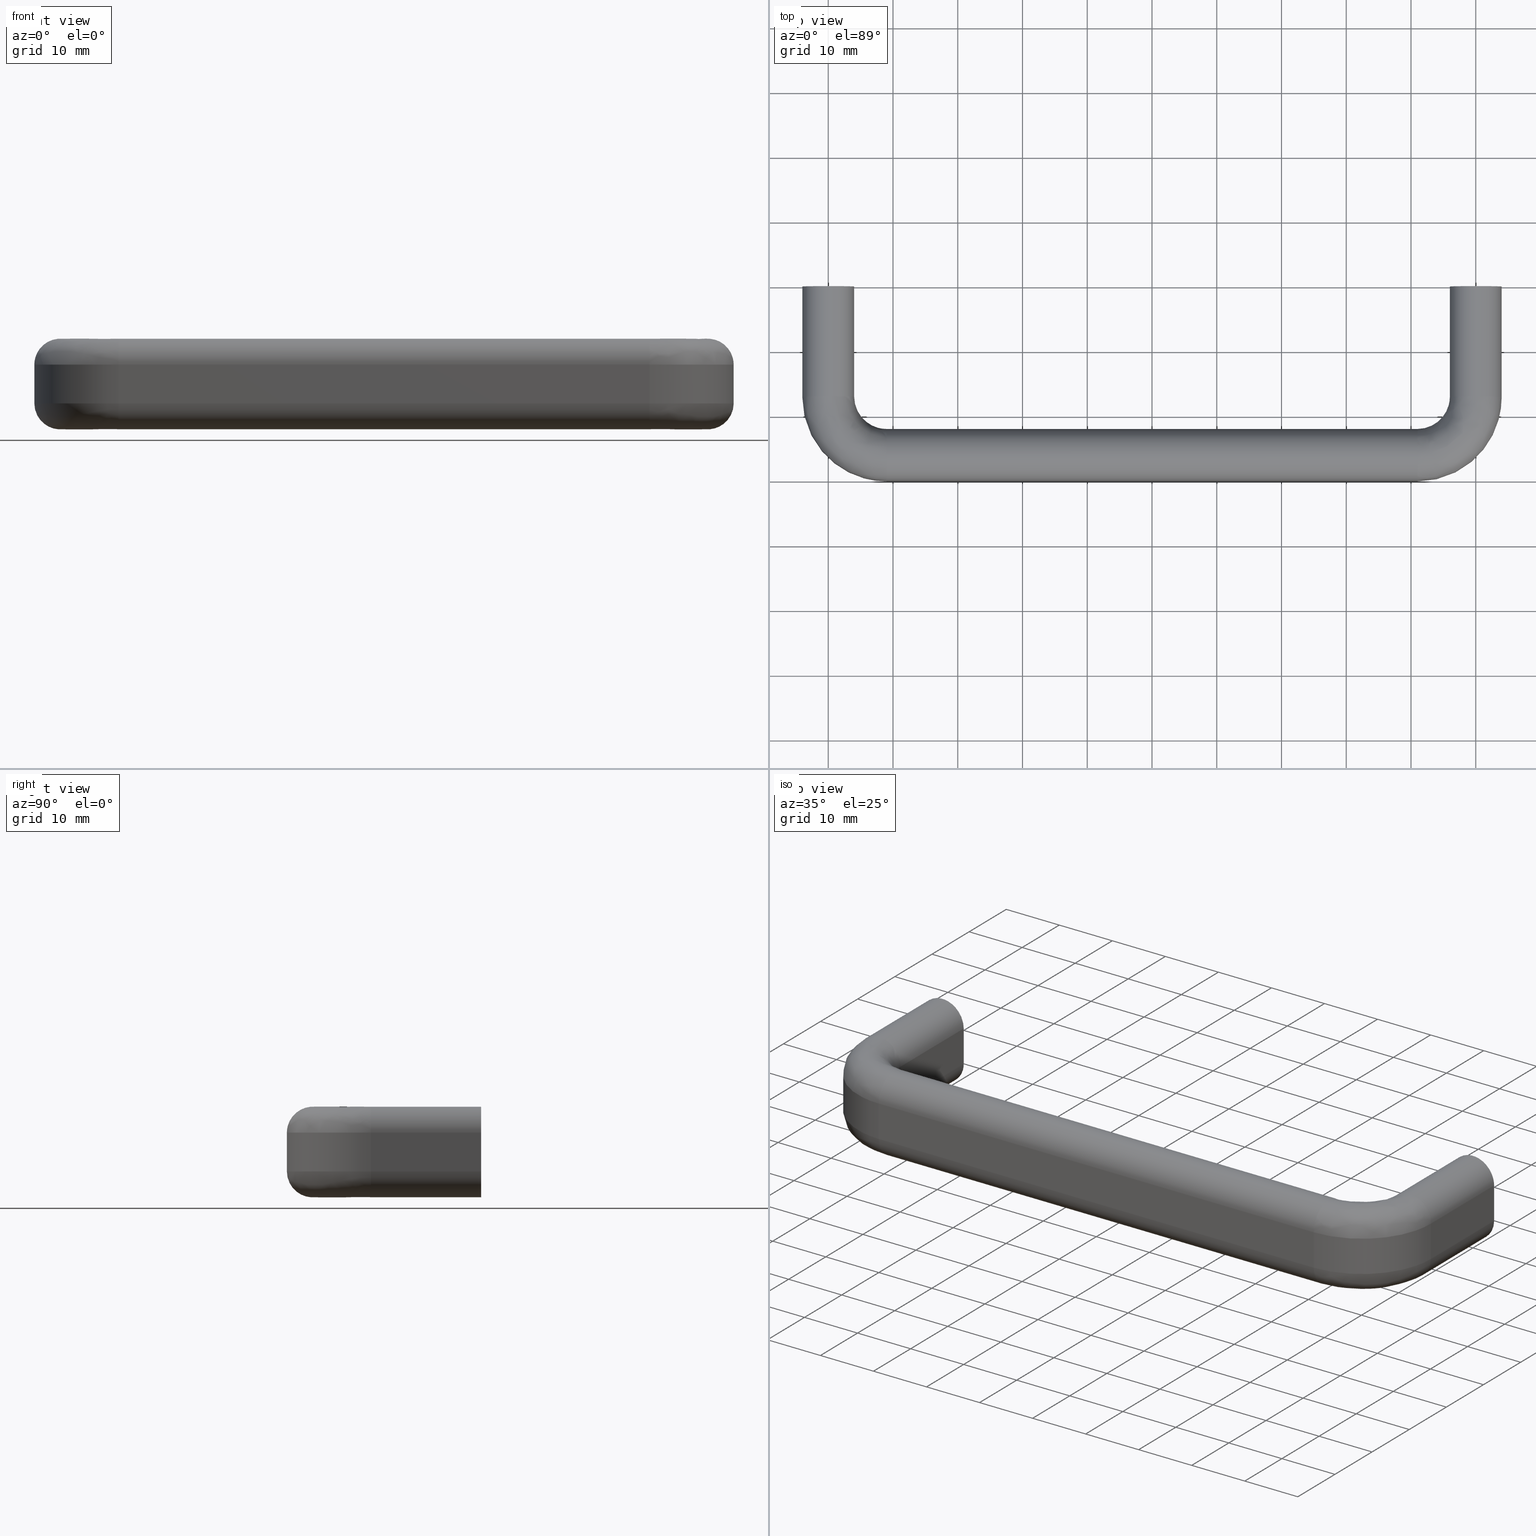
[diagram: canonical four-view strip — front | top / right | iso, engineering-drawing reading convention]
A machine part, canonical four-view strip (front | top / right | iso — engineering-drawing reading convention). The complete STEP part file that produces these views, byte-faithful:
ISO-10303-21;
HEADER;
/****************************************************************
 * Generated by software with PDE/Lib inside                    *
 * PDElib Version 4.4.1-0003, patched  Thursday August 19 11:58 *
 * International Technegroup Inc. (www.iti-oh.com)              *
 ****************************************************************/
FILE_DESCRIPTION((''),'2;1');
FILE_NAME('','2005-10-12T14:15:23',(''),(''),'','CADfix','');
FILE_SCHEMA(('AUTOMOTIVE_DESIGN'));
ENDSEC;
DATA;
#5=APPLICATION_CONTEXT('automotive design');
#6=APPLICATION_PROTOCOL_DEFINITION('Draft International Standard','automotive_design',1998,#5);
#7=PRODUCT_CONTEXT('None',#5,'mechanical');
#8=PRODUCT('pull','','None',(#7));
#9=PRODUCT_RELATED_PRODUCT_CATEGORY('part','description',(#8));
#10=PRODUCT_DEFINITION_FORMATION('None','None',#8);
#11=PRODUCT_DEFINITION_CONTEXT('part definition',#5,'design');
#12=PRODUCT_DEFINITION('None','None',#10,#11);
#18=(NAMED_UNIT(*)PLANE_ANGLE_UNIT()SI_UNIT($,.RADIAN.));
#19=DIMENSIONAL_EXPONENTS(0.0,0.0,0.0,0.0,0.0,0.0,0.0);
#20=PLANE_ANGLE_MEASURE_WITH_UNIT(PLANE_ANGLE_MEASURE(0.017453292500000),#18);
#24=(CONVERSION_BASED_UNIT('DEGREE',#20)NAMED_UNIT(#19)PLANE_ANGLE_UNIT());
#28=(NAMED_UNIT(*)SI_UNIT($,.STERADIAN.)SOLID_ANGLE_UNIT());
#32=(LENGTH_UNIT()NAMED_UNIT(*)SI_UNIT(.MILLI.,.METRE.));
#34=UNCERTAINTY_MEASURE_WITH_UNIT(LENGTH_MEASURE(0.001000000000000),#32,'DISTANCE_ACCURACY_VALUE','');
#36=(GEOMETRIC_REPRESENTATION_CONTEXT(3)GLOBAL_UNCERTAINTY_ASSIGNED_CONTEXT((#34))GLOBAL_UNIT_ASSIGNED_CONTEXT((#24,#28,#32))REPRESENTATION_CONTEXT('None','None'));
#37=AXIS2_PLACEMENT_3D('',#38,#39,#40);
#38=CARTESIAN_POINT('',(0.0,0.0,0.0));
#39=DIRECTION('',(0.0,0.0,1.0));
#40=DIRECTION('',(1.0,0.0,0.0));
#41=ADVANCED_BREP_SHAPE_REPRESENTATION('',(#37,#1313),#36);
#42=PRODUCT_DEFINITION_SHAPE('','',#12);
#43=SHAPE_DEFINITION_REPRESENTATION(#42,#41);
#44=CARTESIAN_POINT('',(-2.492293334332819,-10.250000000000000,0.196147739319614));
#45=CARTESIAN_POINT('',(-2.296145595013206,-10.250000000000000,2.688441073652433));
#46=CARTESIAN_POINT('',(0.196147739319614,-10.250000000000000,2.492293334332819));
#47=CARTESIAN_POINT('',(2.688441073652433,-10.250000000000000,2.296145595013206));
#48=CARTESIAN_POINT('',(2.492293334332819,-10.250000000000000,-0.196147739319614));
#49=CARTESIAN_POINT('',(-2.492293334332819,0.256250000000001,0.196147739319614));
#50=CARTESIAN_POINT('',(-2.296145595013206,0.256250000000001,2.688441073652433));
#51=CARTESIAN_POINT('',(0.196147739319614,0.256250000000001,2.492293334332819));
#52=CARTESIAN_POINT('',(2.688441073652433,0.256250000000001,2.296145595013206));
#53=CARTESIAN_POINT('',(2.492293334332819,0.256250000000001,-0.196147739319614));
#61=(BOUNDED_SURFACE()B_SPLINE_SURFACE(2,1,((#44,#49),(#45,#50),(#46,#51),(#47,#52),(#48,#53)),.UNSPECIFIED.,.F.,.F.,.U.)B_SPLINE_SURFACE_WITH_KNOTS((3,2,3),(2,2),(0.0,4.142135623730949,8.284271247461899),(0.0,10.506250000000000),.UNSPECIFIED.)GEOMETRIC_REPRESENTATION_ITEM()RATIONAL_B_SPLINE_SURFACE(((1.0,1.0),(0.707106781186548,0.707106781186548),(1.0,1.0),(0.707106781186548,0.707106781186548),(1.0,1.0)))REPRESENTATION_ITEM('')SURFACE());
#62=CARTESIAN_POINT('',(0.0,-10.0,2.500000000000000));
#63=VERTEX_POINT('',#62);
#64=CARTESIAN_POINT('',(-2.492293334302274,-10.0,0.196147739707723));
#65=VERTEX_POINT('',#64);
#66=CARTESIAN_POINT('',(0.0,-10.0,2.500000000000000));
#67=CARTESIAN_POINT('',(-2.310976228423543,-9.999999999999998,2.500000000000000));
#68=CARTESIAN_POINT('',(-2.492293334302275,-10.0,0.196147739707723));
#76=(BOUNDED_CURVE()B_SPLINE_CURVE(2,(#66,#67,#68),.UNSPECIFIED.,.F.,.U.)B_SPLINE_CURVE_WITH_KNOTS((3,3),(0.0,0.236331300579377),.UNSPECIFIED.)CURVE()GEOMETRIC_REPRESENTATION_ITEM()RATIONAL_B_SPLINE_CURVE((1.0,0.723120658667747,0.969723356060395))REPRESENTATION_ITEM(''));
#77=EDGE_CURVE('',#63,#65,#76,.T.);
#78=ORIENTED_EDGE('',*,*,#77,.T.);
#79=CARTESIAN_POINT('',(-2.492293334302274,0.0,0.196147739707724));
#80=VERTEX_POINT('',#79);
#81=CARTESIAN_POINT('',(-2.492293334302274,-10.0,0.196147739707723));
#82=CARTESIAN_POINT('',(-2.492293334302274,0.0,0.196147739707724));
#83=QUASI_UNIFORM_CURVE('',1,(#81,#82),.UNSPECIFIED.,.F.,.U.);
#84=EDGE_CURVE('',#65,#80,#83,.T.);
#85=ORIENTED_EDGE('',*,*,#84,.T.);
#86=CARTESIAN_POINT('',(0.0,0.0,2.500000000000000));
#87=VERTEX_POINT('',#86);
#88=CARTESIAN_POINT('',(0.0,0.0,2.500000000000000));
#89=CARTESIAN_POINT('',(-2.310976228423543,0.0,2.500000000000000));
#90=CARTESIAN_POINT('',(-2.492293334302274,0.0,0.196147739707724));
#98=(BOUNDED_CURVE()B_SPLINE_CURVE(2,(#88,#89,#90),.UNSPECIFIED.,.F.,.U.)B_SPLINE_CURVE_WITH_KNOTS((3,3),(0.0,0.236331300579377),.UNSPECIFIED.)CURVE()GEOMETRIC_REPRESENTATION_ITEM()RATIONAL_B_SPLINE_CURVE((1.0,0.723120658667747,0.969723356060395))REPRESENTATION_ITEM(''));
#99=EDGE_CURVE('',#87,#80,#98,.T.);
#100=ORIENTED_EDGE('',*,*,#99,.F.);
#101=CARTESIAN_POINT('',(2.492293334302274,0.0,-0.196147739707723));
#102=VERTEX_POINT('',#101);
#103=CARTESIAN_POINT('',(2.492293334302275,0.0,-0.196147739707723));
#104=CARTESIAN_POINT('',(2.500000000000000,0.0,-0.098225267909086));
#105=CARTESIAN_POINT('',(2.500000000000000,0.0,0.0));
#106=CARTESIAN_POINT('',(2.500000000000000,0.0,2.500000000000000));
#107=CARTESIAN_POINT('',(0.0,0.0,2.500000000000000));
#115=(BOUNDED_CURVE()B_SPLINE_CURVE(2,(#103,#104,#105,#106,#107),.UNSPECIFIED.,.F.,.U.)B_SPLINE_CURVE_WITH_KNOTS((3,2,3),(0.736331300579377,0.750000000000000,1.0),.UNSPECIFIED.)CURVE()GEOMETRIC_REPRESENTATION_ITEM()RATIONAL_B_SPLINE_CURVE((0.969723356060395,0.983986122518801,1.0,0.707106781186548,1.0))REPRESENTATION_ITEM(''));
#116=EDGE_CURVE('',#102,#87,#115,.T.);
#117=ORIENTED_EDGE('',*,*,#116,.F.);
#118=CARTESIAN_POINT('',(2.492293334302274,-10.0,-0.196147739707723));
#119=VERTEX_POINT('',#118);
#120=CARTESIAN_POINT('',(2.492293334302274,-10.0,-0.196147739707723));
#121=CARTESIAN_POINT('',(2.492293334302274,0.0,-0.196147739707723));
#122=QUASI_UNIFORM_CURVE('',1,(#120,#121),.UNSPECIFIED.,.F.,.U.);
#123=EDGE_CURVE('',#119,#102,#122,.T.);
#124=ORIENTED_EDGE('',*,*,#123,.F.);
#125=CARTESIAN_POINT('',(2.492293334302275,-10.0,-0.196147739707723));
#126=CARTESIAN_POINT('',(2.500000000000000,-9.999999999999998,-0.098225267909086));
#127=CARTESIAN_POINT('',(2.500000000000000,-10.0,0.0));
#128=CARTESIAN_POINT('',(2.500000000000000,-10.000000000000002,2.500000000000000));
#129=CARTESIAN_POINT('',(0.0,-10.0,2.500000000000000));
#137=(BOUNDED_CURVE()B_SPLINE_CURVE(2,(#125,#126,#127,#128,#129),.UNSPECIFIED.,.F.,.U.)B_SPLINE_CURVE_WITH_KNOTS((3,2,3),(0.736331300579377,0.750000000000000,1.0),.UNSPECIFIED.)CURVE()GEOMETRIC_REPRESENTATION_ITEM()RATIONAL_B_SPLINE_CURVE((0.969723356060395,0.983986122518801,1.0,0.707106781186548,1.0))REPRESENTATION_ITEM(''));
#138=EDGE_CURVE('',#119,#63,#137,.T.);
#139=ORIENTED_EDGE('',*,*,#138,.T.);
#140=EDGE_LOOP('',(#78,#85,#100,#117,#124,#139));
#141=FACE_OUTER_BOUND('',#140,.T.);
#142=ADVANCED_FACE('',(#141),#61,.F.);
#143=CARTESIAN_POINT('',(2.492293334332819,-10.250000000000000,-0.196147739319614));
#144=CARTESIAN_POINT('',(2.296145595013206,-10.250000000000000,-2.688441073652433));
#145=CARTESIAN_POINT('',(-0.196147739319614,-10.250000000000000,-2.492293334332819));
#146=CARTESIAN_POINT('',(-2.688441073652433,-10.250000000000000,-2.296145595013206));
#147=CARTESIAN_POINT('',(-2.492293334332819,-10.250000000000000,0.196147739319614));
#148=CARTESIAN_POINT('',(2.492293334332819,0.256250000000001,-0.196147739319614));
#149=CARTESIAN_POINT('',(2.296145595013206,0.256250000000001,-2.688441073652433));
#150=CARTESIAN_POINT('',(-0.196147739319614,0.256250000000001,-2.492293334332819));
#151=CARTESIAN_POINT('',(-2.688441073652433,0.256250000000001,-2.296145595013206));
#152=CARTESIAN_POINT('',(-2.492293334332819,0.256250000000001,0.196147739319614));
#160=(BOUNDED_SURFACE()B_SPLINE_SURFACE(2,1,((#143,#148),(#144,#149),(#145,#150),(#146,#151),(#147,#152)),.UNSPECIFIED.,.F.,.F.,.U.)B_SPLINE_SURFACE_WITH_KNOTS((3,2,3),(2,2),(0.0,4.142135623730949,8.284271247461899),(0.0,10.506250000000000),.UNSPECIFIED.)GEOMETRIC_REPRESENTATION_ITEM()RATIONAL_B_SPLINE_SURFACE(((1.0,1.0),(0.707106781186548,0.707106781186548),(1.0,1.0),(0.707106781186548,0.707106781186548),(1.0,1.0)))REPRESENTATION_ITEM('')SURFACE());
#161=CARTESIAN_POINT('',(0.0,-10.0,-2.500000000000000));
#162=VERTEX_POINT('',#161);
#163=CARTESIAN_POINT('',(-2.492293334302275,-10.0,0.196147739707723));
#164=CARTESIAN_POINT('',(-2.500000000000000,-9.999999999999998,0.098225267909086));
#165=CARTESIAN_POINT('',(-2.500000000000000,-10.0,0.0));
#166=CARTESIAN_POINT('',(-2.500000000000000,-10.000000000000002,-2.500000000000000));
#167=CARTESIAN_POINT('',(0.0,-10.0,-2.500000000000000));
#175=(BOUNDED_CURVE()B_SPLINE_CURVE(2,(#163,#164,#165,#166,#167),.UNSPECIFIED.,.F.,.U.)B_SPLINE_CURVE_WITH_KNOTS((3,2,3),(0.236331300579377,0.250000000000000,0.500000000000000),.UNSPECIFIED.)CURVE()GEOMETRIC_REPRESENTATION_ITEM()RATIONAL_B_SPLINE_CURVE((0.969723356060395,0.983986122518801,1.0,0.707106781186548,1.0))REPRESENTATION_ITEM(''));
#176=EDGE_CURVE('',#65,#162,#175,.T.);
#177=ORIENTED_EDGE('',*,*,#176,.T.);
#178=CARTESIAN_POINT('',(0.0,-10.0,-2.500000000000000));
#179=CARTESIAN_POINT('',(2.310976228423551,-10.0,-2.500000000000000));
#180=CARTESIAN_POINT('',(2.492293334302275,-10.0,-0.196147739707723));
#188=(BOUNDED_CURVE()B_SPLINE_CURVE(2,(#178,#179,#180),.UNSPECIFIED.,.F.,.U.)B_SPLINE_CURVE_WITH_KNOTS((3,3),(0.500000000000000,0.736331300579378),.UNSPECIFIED.)CURVE()GEOMETRIC_REPRESENTATION_ITEM()RATIONAL_B_SPLINE_CURVE((1.0,0.723120658667746,0.969723356060396))REPRESENTATION_ITEM(''));
#189=EDGE_CURVE('',#162,#119,#188,.T.);
#190=ORIENTED_EDGE('',*,*,#189,.T.);
#191=ORIENTED_EDGE('',*,*,#123,.T.);
#192=CARTESIAN_POINT('',(0.0,0.0,-2.500000000000000));
#193=VERTEX_POINT('',#192);
#194=CARTESIAN_POINT('',(0.0,0.0,-2.500000000000000));
#195=CARTESIAN_POINT('',(2.310976228423551,0.0,-2.500000000000000));
#196=CARTESIAN_POINT('',(2.492293334302275,0.0,-0.196147739707723));
#204=(BOUNDED_CURVE()B_SPLINE_CURVE(2,(#194,#195,#196),.UNSPECIFIED.,.F.,.U.)B_SPLINE_CURVE_WITH_KNOTS((3,3),(0.500000000000000,0.736331300579378),.UNSPECIFIED.)CURVE()GEOMETRIC_REPRESENTATION_ITEM()RATIONAL_B_SPLINE_CURVE((1.0,0.723120658667746,0.969723356060396))REPRESENTATION_ITEM(''));
#205=EDGE_CURVE('',#193,#102,#204,.T.);
#206=ORIENTED_EDGE('',*,*,#205,.F.);
#207=CARTESIAN_POINT('',(-2.492293334302274,0.0,0.196147739707724));
#208=CARTESIAN_POINT('',(-2.500000000000000,0.0,0.098225267909086));
#209=CARTESIAN_POINT('',(-2.500000000000000,0.0,0.0));
#210=CARTESIAN_POINT('',(-2.500000000000000,0.0,-2.500000000000000));
#211=CARTESIAN_POINT('',(0.0,0.0,-2.500000000000000));
#219=(BOUNDED_CURVE()B_SPLINE_CURVE(2,(#207,#208,#209,#210,#211),.UNSPECIFIED.,.F.,.U.)B_SPLINE_CURVE_WITH_KNOTS((3,2,3),(0.236331300579377,0.250000000000000,0.500000000000000),.UNSPECIFIED.)CURVE()GEOMETRIC_REPRESENTATION_ITEM()RATIONAL_B_SPLINE_CURVE((0.969723356060395,0.983986122518801,1.0,0.707106781186548,1.0))REPRESENTATION_ITEM(''));
#220=EDGE_CURVE('',#80,#193,#219,.T.);
#221=ORIENTED_EDGE('',*,*,#220,.F.);
#222=ORIENTED_EDGE('',*,*,#84,.F.);
#223=EDGE_LOOP('',(#177,#190,#191,#206,#221,#222));
#224=FACE_OUTER_BOUND('',#223,.T.);
#225=ADVANCED_FACE('',(#224),#160,.F.);
#226=CARTESIAN_POINT('',(97.507706665667186,-10.250000000000000,0.196147739319614));
#227=CARTESIAN_POINT('',(97.703854404986799,-10.250000000000002,2.688441073652433));
#228=CARTESIAN_POINT('',(100.196147739319600,-10.250000000000000,2.492293334332819));
#229=CARTESIAN_POINT('',(102.688441073652430,-10.250000000000002,2.296145595013206));
#230=CARTESIAN_POINT('',(102.492293334332800,-10.250000000000000,-0.196147739319614));
#231=CARTESIAN_POINT('',(97.507706665667186,0.256250000000001,0.196147739319614));
#232=CARTESIAN_POINT('',(97.703854404986799,0.256250000000001,2.688441073652433));
#233=CARTESIAN_POINT('',(100.196147739319600,0.256250000000001,2.492293334332819));
#234=CARTESIAN_POINT('',(102.688441073652430,0.256250000000001,2.296145595013206));
#235=CARTESIAN_POINT('',(102.492293334332800,0.256250000000001,-0.196147739319614));
#243=(BOUNDED_SURFACE()B_SPLINE_SURFACE(2,1,((#226,#231),(#227,#232),(#228,#233),(#229,#234),(#230,#235)),.UNSPECIFIED.,.F.,.F.,.U.)B_SPLINE_SURFACE_WITH_KNOTS((3,2,3),(2,2),(0.0,4.142135623730946,8.284271247461891),(0.0,10.506250000000000),.UNSPECIFIED.)GEOMETRIC_REPRESENTATION_ITEM()RATIONAL_B_SPLINE_SURFACE(((1.0,1.0),(0.707106781186548,0.707106781186548),(1.0,1.0),(0.707106781186548,0.707106781186548),(1.0,1.0)))REPRESENTATION_ITEM('')SURFACE());
#244=CARTESIAN_POINT('',(100.0,-10.0,2.500000000000000));
#245=VERTEX_POINT('',#244);
#246=CARTESIAN_POINT('',(97.507706665697725,-10.0,0.196147739707724));
#247=VERTEX_POINT('',#246);
#248=CARTESIAN_POINT('',(100.0,-10.0,2.500000000000000));
#249=CARTESIAN_POINT('',(97.689023771576458,-10.000000000000002,2.500000000000001));
#250=CARTESIAN_POINT('',(97.507706665697725,-10.0,0.196147739707724));
#258=(BOUNDED_CURVE()B_SPLINE_CURVE(2,(#248,#249,#250),.UNSPECIFIED.,.F.,.U.)B_SPLINE_CURVE_WITH_KNOTS((3,3),(0.0,0.236331300579377),.UNSPECIFIED.)CURVE()GEOMETRIC_REPRESENTATION_ITEM()RATIONAL_B_SPLINE_CURVE((1.0,0.723120658667747,0.969723356060395))REPRESENTATION_ITEM(''));
#259=EDGE_CURVE('',#245,#247,#258,.T.);
#260=ORIENTED_EDGE('',*,*,#259,.T.);
#261=CARTESIAN_POINT('',(97.507706665697725,-2.775558E-017,0.196147739707724));
#262=VERTEX_POINT('',#261);
#263=CARTESIAN_POINT('',(97.507706665697725,-10.0,0.196147739707724));
#264=CARTESIAN_POINT('',(97.507706665697725,-2.775558E-017,0.196147739707724));
#265=QUASI_UNIFORM_CURVE('',1,(#263,#264),.UNSPECIFIED.,.F.,.U.);
#266=EDGE_CURVE('',#247,#262,#265,.T.);
#267=ORIENTED_EDGE('',*,*,#266,.T.);
#268=CARTESIAN_POINT('',(100.0,0.0,2.500000000000000));
#269=VERTEX_POINT('',#268);
#270=CARTESIAN_POINT('',(100.0,0.0,2.500000000000000));
#271=CARTESIAN_POINT('',(97.689023771576444,0.0,2.499999999999999));
#272=CARTESIAN_POINT('',(97.507706665697725,-2.775558E-017,0.196147739707724));
#280=(BOUNDED_CURVE()B_SPLINE_CURVE(2,(#270,#271,#272),.UNSPECIFIED.,.F.,.U.)B_SPLINE_CURVE_WITH_KNOTS((3,3),(0.0,0.236331300579377),.UNSPECIFIED.)CURVE()GEOMETRIC_REPRESENTATION_ITEM()RATIONAL_B_SPLINE_CURVE((1.0,0.723120658667747,0.969723356060395))REPRESENTATION_ITEM(''));
#281=EDGE_CURVE('',#269,#262,#280,.T.);
#282=ORIENTED_EDGE('',*,*,#281,.F.);
#283=CARTESIAN_POINT('',(102.492293334302300,-2.775558E-017,-0.196147739707724));
#284=VERTEX_POINT('',#283);
#285=CARTESIAN_POINT('',(102.492293334302270,-2.775558E-017,-0.196147739707724));
#286=CARTESIAN_POINT('',(102.500000000000060,0.0,-0.098225267909086));
#287=CARTESIAN_POINT('',(102.500000000000000,0.0,0.0));
#288=CARTESIAN_POINT('',(102.500000000000010,0.0,2.500000000000000));
#289=CARTESIAN_POINT('',(100.0,0.0,2.500000000000000));
#297=(BOUNDED_CURVE()B_SPLINE_CURVE(2,(#285,#286,#287,#288,#289),.UNSPECIFIED.,.F.,.U.)B_SPLINE_CURVE_WITH_KNOTS((3,2,3),(0.736331300579377,0.750000000000000,1.0),.UNSPECIFIED.)CURVE()GEOMETRIC_REPRESENTATION_ITEM()RATIONAL_B_SPLINE_CURVE((0.969723356060395,0.983986122518800,1.0,0.707106781186548,1.0))REPRESENTATION_ITEM(''));
#298=EDGE_CURVE('',#284,#269,#297,.T.);
#299=ORIENTED_EDGE('',*,*,#298,.F.);
#300=CARTESIAN_POINT('',(102.492293334302300,-10.0,-0.196147739707725));
#301=VERTEX_POINT('',#300);
#302=CARTESIAN_POINT('',(102.492293334302300,-10.0,-0.196147739707725));
#303=CARTESIAN_POINT('',(102.492293334302300,-2.775558E-017,-0.196147739707724));
#304=QUASI_UNIFORM_CURVE('',1,(#302,#303),.UNSPECIFIED.,.F.,.U.);
#305=EDGE_CURVE('',#301,#284,#304,.T.);
#306=ORIENTED_EDGE('',*,*,#305,.F.);
#307=CARTESIAN_POINT('',(102.492293334302270,-10.0,-0.196147739707725));
#308=CARTESIAN_POINT('',(102.500000000000070,-10.0,-0.098225267909087));
#309=CARTESIAN_POINT('',(102.500000000000000,-10.0,0.0));
#310=CARTESIAN_POINT('',(102.500000000000010,-10.000000000000002,2.500000000000000));
#311=CARTESIAN_POINT('',(100.0,-10.0,2.500000000000000));
#319=(BOUNDED_CURVE()B_SPLINE_CURVE(2,(#307,#308,#309,#310,#311),.UNSPECIFIED.,.F.,.U.)B_SPLINE_CURVE_WITH_KNOTS((3,2,3),(0.736331300579377,0.750000000000000,1.0),.UNSPECIFIED.)CURVE()GEOMETRIC_REPRESENTATION_ITEM()RATIONAL_B_SPLINE_CURVE((0.969723356060394,0.983986122518800,1.0,0.707106781186548,1.0))REPRESENTATION_ITEM(''));
#320=EDGE_CURVE('',#301,#245,#319,.T.);
#321=ORIENTED_EDGE('',*,*,#320,.T.);
#322=EDGE_LOOP('',(#260,#267,#282,#299,#306,#321));
#323=FACE_OUTER_BOUND('',#322,.T.);
#324=ADVANCED_FACE('',(#323),#243,.F.);
#325=CARTESIAN_POINT('',(102.492293334332800,-10.250000000000000,-0.196147739319614));
#326=CARTESIAN_POINT('',(102.296145595013190,-10.250000000000002,-2.688441073652433));
#327=CARTESIAN_POINT('',(99.803852260680387,-10.250000000000000,-2.492293334332819));
#328=CARTESIAN_POINT('',(97.311558926347573,-10.250000000000002,-2.296145595013206));
#329=CARTESIAN_POINT('',(97.507706665667186,-10.250000000000000,0.196147739319614));
#330=CARTESIAN_POINT('',(102.492293334332800,0.256250000000001,-0.196147739319614));
#331=CARTESIAN_POINT('',(102.296145595013190,0.256250000000001,-2.688441073652433));
#332=CARTESIAN_POINT('',(99.803852260680387,0.256250000000001,-2.492293334332819));
#333=CARTESIAN_POINT('',(97.311558926347573,0.256250000000001,-2.296145595013206));
#334=CARTESIAN_POINT('',(97.507706665667186,0.256250000000001,0.196147739319614));
#342=(BOUNDED_SURFACE()B_SPLINE_SURFACE(2,1,((#325,#330),(#326,#331),(#327,#332),(#328,#333),(#329,#334)),.UNSPECIFIED.,.F.,.F.,.U.)B_SPLINE_SURFACE_WITH_KNOTS((3,2,3),(2,2),(0.0,4.142135623730946,8.284271247461891),(0.0,10.506250000000000),.UNSPECIFIED.)GEOMETRIC_REPRESENTATION_ITEM()RATIONAL_B_SPLINE_SURFACE(((1.0,1.0),(0.707106781186548,0.707106781186548),(1.0,1.0),(0.707106781186548,0.707106781186548),(1.0,1.0)))REPRESENTATION_ITEM('')SURFACE());
#343=CARTESIAN_POINT('',(100.0,-10.0,-2.500000000000000));
#344=VERTEX_POINT('',#343);
#345=CARTESIAN_POINT('',(97.507706665697725,-10.0,0.196147739707724));
#346=CARTESIAN_POINT('',(97.500000000000000,-10.0,0.098225267909086));
#347=CARTESIAN_POINT('',(97.500000000000000,-10.0,0.0));
#348=CARTESIAN_POINT('',(97.500000000000000,-10.000000000000002,-2.500000000000000));
#349=CARTESIAN_POINT('',(100.0,-10.0,-2.500000000000000));
#357=(BOUNDED_CURVE()B_SPLINE_CURVE(2,(#345,#346,#347,#348,#349),.UNSPECIFIED.,.F.,.U.)B_SPLINE_CURVE_WITH_KNOTS((3,2,3),(0.236331300579377,0.250000000000000,0.500000000000000),.UNSPECIFIED.)CURVE()GEOMETRIC_REPRESENTATION_ITEM()RATIONAL_B_SPLINE_CURVE((0.969723356060395,0.983986122518801,1.0,0.707106781186548,1.0))REPRESENTATION_ITEM(''));
#358=EDGE_CURVE('',#247,#344,#357,.T.);
#359=ORIENTED_EDGE('',*,*,#358,.T.);
#360=CARTESIAN_POINT('',(100.0,-10.0,-2.500000000000000));
#361=CARTESIAN_POINT('',(102.310976228423580,-10.0,-2.500000000000000));
#362=CARTESIAN_POINT('',(102.492293334302270,-10.0,-0.196147739707725));
#370=(BOUNDED_CURVE()B_SPLINE_CURVE(2,(#360,#361,#362),.UNSPECIFIED.,.F.,.U.)B_SPLINE_CURVE_WITH_KNOTS((3,3),(0.500000000000000,0.736331300579378),.UNSPECIFIED.)CURVE()GEOMETRIC_REPRESENTATION_ITEM()RATIONAL_B_SPLINE_CURVE((1.0,0.723120658667746,0.969723356060396))REPRESENTATION_ITEM(''));
#371=EDGE_CURVE('',#344,#301,#370,.T.);
#372=ORIENTED_EDGE('',*,*,#371,.T.);
#373=ORIENTED_EDGE('',*,*,#305,.T.);
#374=CARTESIAN_POINT('',(100.0,0.0,-2.500000000000000));
#375=VERTEX_POINT('',#374);
#376=CARTESIAN_POINT('',(100.0,0.0,-2.500000000000000));
#377=CARTESIAN_POINT('',(102.310976228423580,0.0,-2.500000000000000));
#378=CARTESIAN_POINT('',(102.492293334302270,-2.775558E-017,-0.196147739707724));
#386=(BOUNDED_CURVE()B_SPLINE_CURVE(2,(#376,#377,#378),.UNSPECIFIED.,.F.,.U.)B_SPLINE_CURVE_WITH_KNOTS((3,3),(0.500000000000000,0.736331300579378),.UNSPECIFIED.)CURVE()GEOMETRIC_REPRESENTATION_ITEM()RATIONAL_B_SPLINE_CURVE((1.0,0.723120658667746,0.969723356060396))REPRESENTATION_ITEM(''));
#387=EDGE_CURVE('',#375,#284,#386,.T.);
#388=ORIENTED_EDGE('',*,*,#387,.F.);
#389=CARTESIAN_POINT('',(97.507706665697739,-2.775558E-017,0.196147739707724));
#390=CARTESIAN_POINT('',(97.500000000000014,0.0,0.098225267909086));
#391=CARTESIAN_POINT('',(97.500000000000000,0.0,0.0));
#392=CARTESIAN_POINT('',(97.500000000000000,0.0,-2.500000000000000));
#393=CARTESIAN_POINT('',(100.0,0.0,-2.500000000000000));
#401=(BOUNDED_CURVE()B_SPLINE_CURVE(2,(#389,#390,#391,#392,#393),.UNSPECIFIED.,.F.,.U.)B_SPLINE_CURVE_WITH_KNOTS((3,2,3),(0.236331300579377,0.250000000000000,0.500000000000000),.UNSPECIFIED.)CURVE()GEOMETRIC_REPRESENTATION_ITEM()RATIONAL_B_SPLINE_CURVE((0.969723356060395,0.983986122518800,1.0,0.707106781186548,1.0))REPRESENTATION_ITEM(''));
#402=EDGE_CURVE('',#262,#375,#401,.T.);
#403=ORIENTED_EDGE('',*,*,#402,.F.);
#404=ORIENTED_EDGE('',*,*,#266,.F.);
#405=EDGE_LOOP('',(#359,#372,#373,#388,#403,#404));
#406=FACE_OUTER_BOUND('',#405,.T.);
#407=ADVANCED_FACE('',(#406),#342,.F.);
#408=CARTESIAN_POINT('',(-2.748986881816460,-10.0,2.749749990309030));
#409=CARTESIAN_POINT('',(2.748987015926910,-10.0,2.749749990309030));
#410=CARTESIAN_POINT('',(-2.748986881816460,-10.0,-2.749750124419481));
#411=CARTESIAN_POINT('',(2.748987015926910,-10.0,-2.749750124419481));
#412=B_SPLINE_SURFACE_WITH_KNOTS('',1,1,((#408,#410),(#409,#411)),.UNSPECIFIED.,.F.,.F.,.U.,(2,2),(2,2),(0.0,5.497973897743369),(0.0,5.499500114728511),.UNSPECIFIED.);
#413=ORIENTED_EDGE('',*,*,#138,.F.);
#414=ORIENTED_EDGE('',*,*,#189,.F.);
#415=ORIENTED_EDGE('',*,*,#176,.F.);
#416=ORIENTED_EDGE('',*,*,#77,.F.);
#417=EDGE_LOOP('',(#413,#414,#415,#416));
#418=FACE_OUTER_BOUND('',#417,.T.);
#419=ADVANCED_FACE('',(#418),#412,.T.);
#420=CARTESIAN_POINT('',(97.251013623274787,-10.0,2.749749990309030));
#421=CARTESIAN_POINT('',(102.748986242614810,-10.0,2.749749990309030));
#422=CARTESIAN_POINT('',(97.251013623274787,-10.0,-2.749750124419481));
#423=CARTESIAN_POINT('',(102.748986242614810,-10.0,-2.749750124419481));
#424=B_SPLINE_SURFACE_WITH_KNOTS('',1,1,((#420,#422),(#421,#423)),.UNSPECIFIED.,.F.,.F.,.U.,(2,2),(2,2),(0.0,5.497972619339990),(0.0,5.499500114728511),.UNSPECIFIED.);
#425=ORIENTED_EDGE('',*,*,#320,.F.);
#426=ORIENTED_EDGE('',*,*,#371,.F.);
#427=ORIENTED_EDGE('',*,*,#358,.F.);
#428=ORIENTED_EDGE('',*,*,#259,.F.);
#429=EDGE_LOOP('',(#425,#426,#427,#428));
#430=FACE_OUTER_BOUND('',#429,.T.);
#431=ADVANCED_FACE('',(#430),#424,.T.);
#432=CARTESIAN_POINT('',(96.001370700097766,-17.425000000000001,-2.895292206768502));
#433=CARTESIAN_POINT('',(96.001370700097766,0.435625000000002,-2.895292206768502));
#434=CARTESIAN_POINT('',(95.891031708628390,-17.425000000000008,-7.108968291371596));
#435=CARTESIAN_POINT('',(95.891031708628390,0.435625000000002,-7.108968291371596));
#436=CARTESIAN_POINT('',(100.104707793231500,-17.425000000000001,-6.998629299902220));
#437=CARTESIAN_POINT('',(100.104707793231500,0.435625000000002,-6.998629299902220));
#438=CARTESIAN_POINT('',(104.318383877834550,-17.425000000000008,-6.888290308432840));
#439=CARTESIAN_POINT('',(104.318383877834550,0.435625000000002,-6.888290308432840));
#440=CARTESIAN_POINT('',(103.987669334932510,-17.425000000000001,-2.686163617088624));
#441=CARTESIAN_POINT('',(103.987669334932510,0.435625000000002,-2.686163617088624));
#449=(BOUNDED_SURFACE()B_SPLINE_SURFACE(1,2,((#432,#434,#436,#438,#440),(#433,#435,#437,#439,#441)),.UNSPECIFIED.,.F.,.F.,.U.)B_SPLINE_SURFACE_WITH_KNOTS((2,2),(3,2,3),(0.0,17.860625000000010),(0.0,6.874142495469379,13.748284990938760),.UNSPECIFIED.)GEOMETRIC_REPRESENTATION_ITEM()RATIONAL_B_SPLINE_SURFACE(((1.0,0.688354575693754,1.0,0.688354575693754,1.0),(1.0,0.688354575693754,1.0,0.688354575693754,1.0)))REPRESENTATION_ITEM('')SURFACE());
#450=CARTESIAN_POINT('',(104.0,0.0,-3.0));
#451=VERTEX_POINT('',#450);
#452=CARTESIAN_POINT('',(96.0,0.0,-3.0));
#453=VERTEX_POINT('',#452);
#454=CARTESIAN_POINT('',(104.0,0.0,-3.0));
#455=CARTESIAN_POINT('',(104.000000000000030,0.0,-6.999999999999999));
#456=CARTESIAN_POINT('',(100.0,0.0,-7.0));
#457=CARTESIAN_POINT('',(96.0,0.0,-6.999999999999999));
#458=CARTESIAN_POINT('',(96.0,0.0,-3.0));
#466=(BOUNDED_CURVE()B_SPLINE_CURVE(2,(#454,#455,#456,#457,#458),.UNSPECIFIED.,.F.,.U.)B_SPLINE_CURVE_WITH_KNOTS((3,2,3),(0.0,0.500000000000000,1.0),.UNSPECIFIED.)CURVE()GEOMETRIC_REPRESENTATION_ITEM()RATIONAL_B_SPLINE_CURVE((1.0,0.707106781186548,1.0,0.707106781186548,1.0))REPRESENTATION_ITEM(''));
#467=EDGE_CURVE('',#451,#453,#466,.T.);
#468=ORIENTED_EDGE('',*,*,#467,.F.);
#469=CARTESIAN_POINT('',(104.0,-17.0,-3.0));
#470=VERTEX_POINT('',#469);
#471=CARTESIAN_POINT('',(104.0,-17.0,-3.0));
#472=CARTESIAN_POINT('',(104.0,0.0,-3.0));
#473=QUASI_UNIFORM_CURVE('',1,(#471,#472),.UNSPECIFIED.,.F.,.U.);
#474=EDGE_CURVE('',#470,#451,#473,.T.);
#475=ORIENTED_EDGE('',*,*,#474,.F.);
#476=CARTESIAN_POINT('',(96.0,-17.0,-3.0));
#477=VERTEX_POINT('',#476);
#478=CARTESIAN_POINT('',(104.0,-17.0,-3.0));
#479=CARTESIAN_POINT('',(104.000000000000030,-17.000000000000004,-6.999999999999999));
#480=CARTESIAN_POINT('',(100.0,-17.0,-7.0));
#481=CARTESIAN_POINT('',(96.0,-17.000000000000004,-6.999999999999999));
#482=CARTESIAN_POINT('',(96.0,-17.0,-3.0));
#490=(BOUNDED_CURVE()B_SPLINE_CURVE(2,(#478,#479,#480,#481,#482),.UNSPECIFIED.,.F.,.U.)B_SPLINE_CURVE_WITH_KNOTS((3,2,3),(0.0,0.500000000000000,1.0),.UNSPECIFIED.)CURVE()GEOMETRIC_REPRESENTATION_ITEM()RATIONAL_B_SPLINE_CURVE((1.0,0.707106781186548,1.0,0.707106781186548,1.0))REPRESENTATION_ITEM(''));
#491=EDGE_CURVE('',#470,#477,#490,.T.);
#492=ORIENTED_EDGE('',*,*,#491,.T.);
#493=CARTESIAN_POINT('',(96.0,-17.0,-3.0));
#494=CARTESIAN_POINT('',(96.0,0.0,-3.0));
#495=QUASI_UNIFORM_CURVE('',1,(#493,#494),.UNSPECIFIED.,.F.,.U.);
#496=EDGE_CURVE('',#477,#453,#495,.T.);
#497=ORIENTED_EDGE('',*,*,#496,.T.);
#498=EDGE_LOOP('',(#468,#475,#492,#497));
#499=FACE_OUTER_BOUND('',#498,.T.);
#500=ADVANCED_FACE('',(#499),#449,.T.);
#501=CARTESIAN_POINT('',(104.0,-17.849149967050710,3.299699988370836));
#502=CARTESIAN_POINT('',(104.0,-17.849149967050710,-3.299700149303376));
#503=CARTESIAN_POINT('',(104.0,0.849150423026235,3.299699988370836));
#504=CARTESIAN_POINT('',(104.0,0.849150423026235,-3.299700149303376));
#505=B_SPLINE_SURFACE_WITH_KNOTS('',1,1,((#501,#503),(#502,#504)),.UNSPECIFIED.,.F.,.F.,.U.,(2,2),(2,2),(0.0,6.599400137674213),(0.0,18.698300390076941),.UNSPECIFIED.);
#506=ORIENTED_EDGE('',*,*,#474,.T.);
#507=CARTESIAN_POINT('',(104.0,0.0,3.0));
#508=VERTEX_POINT('',#507);
#509=CARTESIAN_POINT('',(104.0,0.0,3.0));
#510=CARTESIAN_POINT('',(104.0,0.0,-3.0));
#511=QUASI_UNIFORM_CURVE('',1,(#509,#510),.UNSPECIFIED.,.F.,.U.);
#512=EDGE_CURVE('',#508,#451,#511,.T.);
#513=ORIENTED_EDGE('',*,*,#512,.F.);
#514=CARTESIAN_POINT('',(104.0,-17.0,3.0));
#515=VERTEX_POINT('',#514);
#516=CARTESIAN_POINT('',(104.0,-17.0,3.0));
#517=CARTESIAN_POINT('',(104.0,0.0,3.0));
#518=QUASI_UNIFORM_CURVE('',1,(#516,#517),.UNSPECIFIED.,.F.,.U.);
#519=EDGE_CURVE('',#515,#508,#518,.T.);
#520=ORIENTED_EDGE('',*,*,#519,.F.);
#521=CARTESIAN_POINT('',(104.0,-17.0,3.0));
#522=CARTESIAN_POINT('',(104.0,-17.0,-3.0));
#523=QUASI_UNIFORM_CURVE('',1,(#521,#522),.UNSPECIFIED.,.F.,.U.);
#524=EDGE_CURVE('',#515,#470,#523,.T.);
#525=ORIENTED_EDGE('',*,*,#524,.T.);
#526=EDGE_LOOP('',(#506,#513,#520,#525));
#527=FACE_OUTER_BOUND('',#526,.T.);
#528=ADVANCED_FACE('',(#527),#505,.T.);
#529=CARTESIAN_POINT('',(103.998629299902210,-17.425000000000001,2.895292206768502));
#530=CARTESIAN_POINT('',(103.998629299902210,0.435625000000002,2.895292206768502));
#531=CARTESIAN_POINT('',(104.108968291371610,-17.425000000000008,7.108968291371617));
#532=CARTESIAN_POINT('',(104.108968291371610,0.435625000000002,7.108968291371617));
#533=CARTESIAN_POINT('',(99.895292206768502,-17.425000000000001,6.998629299902234));
#534=CARTESIAN_POINT('',(99.895292206768502,0.435625000000002,6.998629299902234));
#535=CARTESIAN_POINT('',(95.681616122165394,-17.425000000000008,6.888290308432859));
#536=CARTESIAN_POINT('',(95.681616122165394,0.435625000000002,6.888290308432859));
#537=CARTESIAN_POINT('',(96.012330665067481,-17.425000000000001,2.686163617088624));
#538=CARTESIAN_POINT('',(96.012330665067481,0.435625000000002,2.686163617088624));
#546=(BOUNDED_SURFACE()B_SPLINE_SURFACE(1,2,((#529,#531,#533,#535,#537),(#530,#532,#534,#536,#538)),.UNSPECIFIED.,.F.,.F.,.U.)B_SPLINE_SURFACE_WITH_KNOTS((2,2),(3,2,3),(0.0,17.860625000000010),(0.0,6.874142495469383,13.748284990938769),.UNSPECIFIED.)GEOMETRIC_REPRESENTATION_ITEM()RATIONAL_B_SPLINE_SURFACE(((1.0,0.688354575693754,1.0,0.688354575693754,1.0),(1.0,0.688354575693754,1.0,0.688354575693754,1.0)))REPRESENTATION_ITEM('')SURFACE());
#547=ORIENTED_EDGE('',*,*,#519,.T.);
#548=CARTESIAN_POINT('',(96.0,0.0,3.0));
#549=VERTEX_POINT('',#548);
#550=CARTESIAN_POINT('',(96.0,0.0,3.0));
#551=CARTESIAN_POINT('',(96.0,0.0,6.999999999999999));
#552=CARTESIAN_POINT('',(100.0,0.0,7.0));
#553=CARTESIAN_POINT('',(104.000000000000030,0.0,6.999999999999999));
#554=CARTESIAN_POINT('',(104.0,0.0,3.0));
#562=(BOUNDED_CURVE()B_SPLINE_CURVE(2,(#550,#551,#552,#553,#554),.UNSPECIFIED.,.F.,.U.)B_SPLINE_CURVE_WITH_KNOTS((3,2,3),(0.0,0.500000000000000,1.0),.UNSPECIFIED.)CURVE()GEOMETRIC_REPRESENTATION_ITEM()RATIONAL_B_SPLINE_CURVE((1.0,0.707106781186548,1.0,0.707106781186548,1.0))REPRESENTATION_ITEM(''));
#563=EDGE_CURVE('',#549,#508,#562,.T.);
#564=ORIENTED_EDGE('',*,*,#563,.F.);
#565=CARTESIAN_POINT('',(96.0,-17.0,3.0));
#566=VERTEX_POINT('',#565);
#567=CARTESIAN_POINT('',(96.0,-17.0,3.0));
#568=CARTESIAN_POINT('',(96.0,0.0,3.0));
#569=QUASI_UNIFORM_CURVE('',1,(#567,#568),.UNSPECIFIED.,.F.,.U.);
#570=EDGE_CURVE('',#566,#549,#569,.T.);
#571=ORIENTED_EDGE('',*,*,#570,.F.);
#572=CARTESIAN_POINT('',(96.0,-17.0,3.0));
#573=CARTESIAN_POINT('',(96.0,-17.000000000000004,6.999999999999999));
#574=CARTESIAN_POINT('',(100.0,-17.0,7.0));
#575=CARTESIAN_POINT('',(104.000000000000030,-17.000000000000004,6.999999999999999));
#576=CARTESIAN_POINT('',(104.0,-17.0,3.0));
#584=(BOUNDED_CURVE()B_SPLINE_CURVE(2,(#572,#573,#574,#575,#576),.UNSPECIFIED.,.F.,.U.)B_SPLINE_CURVE_WITH_KNOTS((3,2,3),(0.0,0.500000000000000,1.0),.UNSPECIFIED.)CURVE()GEOMETRIC_REPRESENTATION_ITEM()RATIONAL_B_SPLINE_CURVE((1.0,0.707106781186548,1.0,0.707106781186548,1.0))REPRESENTATION_ITEM(''));
#585=EDGE_CURVE('',#566,#515,#584,.T.);
#586=ORIENTED_EDGE('',*,*,#585,.T.);
#587=EDGE_LOOP('',(#547,#564,#571,#586));
#588=FACE_OUTER_BOUND('',#587,.T.);
#589=ADVANCED_FACE('',(#588),#546,.T.);
#590=CARTESIAN_POINT('',(96.0,-17.849149967050710,-3.299699988370836));
#591=CARTESIAN_POINT('',(96.0,-17.849149967050710,3.299700149303376));
#592=CARTESIAN_POINT('',(96.0,0.849150423026235,-3.299699988370836));
#593=CARTESIAN_POINT('',(96.0,0.849150423026235,3.299700149303376));
#594=B_SPLINE_SURFACE_WITH_KNOTS('',1,1,((#590,#592),(#591,#593)),.UNSPECIFIED.,.F.,.F.,.U.,(2,2),(2,2),(0.0,6.599400137674213),(0.0,18.698300390076941),.UNSPECIFIED.);
#595=ORIENTED_EDGE('',*,*,#570,.T.);
#596=CARTESIAN_POINT('',(96.0,0.0,-3.0));
#597=CARTESIAN_POINT('',(96.0,0.0,3.0));
#598=QUASI_UNIFORM_CURVE('',1,(#596,#597),.UNSPECIFIED.,.F.,.U.);
#599=EDGE_CURVE('',#453,#549,#598,.T.);
#600=ORIENTED_EDGE('',*,*,#599,.F.);
#601=ORIENTED_EDGE('',*,*,#496,.F.);
#602=CARTESIAN_POINT('',(96.0,-17.0,-3.0));
#603=CARTESIAN_POINT('',(96.0,-17.0,3.0));
#604=QUASI_UNIFORM_CURVE('',1,(#602,#603),.UNSPECIFIED.,.F.,.U.);
#605=EDGE_CURVE('',#477,#566,#604,.T.);
#606=ORIENTED_EDGE('',*,*,#605,.T.);
#607=EDGE_LOOP('',(#595,#600,#601,#606));
#608=FACE_OUTER_BOUND('',#607,.T.);
#609=ADVANCED_FACE('',(#608),#594,.T.);
#610=CARTESIAN_POINT('',(90.649498039221385,-22.028297792129827,-2.432239537811458));
#611=CARTESIAN_POINT('',(96.431325023987043,-22.431325174122790,-2.432239537811458));
#612=CARTESIAN_POINT('',(96.028297801818582,-16.649498178216433,-2.432239537811458));
#613=CARTESIAN_POINT('',(90.694755427578272,-21.379035729666800,-6.971110965866821));
#614=CARTESIAN_POINT('',(95.730023423970351,-21.730023554720358,-6.971110965866820));
#615=CARTESIAN_POINT('',(95.379035738104520,-16.694755548626034,-6.971110965866819));
#616=CARTESIAN_POINT('',(90.375913253607010,-25.953142521697384,-6.999921043424548));
#617=CARTESIAN_POINT('',(100.670753211460150,-26.670753478784572,-6.999921043424546));
#618=CARTESIAN_POINT('',(99.953142538948725,-16.375913501094821,-6.999921043424547));
#619=CARTESIAN_POINT('',(90.053228750881857,-30.582371325447692,-7.029078307767585));
#620=CARTESIAN_POINT('',(105.671023140366090,-31.671023545910753,-7.029078307767588));
#621=CARTESIAN_POINT('',(104.582371351618850,-16.053229126333434,-7.029078307767584));
#622=CARTESIAN_POINT('',(90.098805278274099,-29.928530897421837,-2.435044108214401));
#623=CARTESIAN_POINT('',(104.964776210442850,-30.964776596465072,-2.435044108214402));
#624=CARTESIAN_POINT('',(103.928530922333200,-16.098805635651861,-2.435044108214402));
#632=(BOUNDED_SURFACE()B_SPLINE_SURFACE(2,2,((#610,#613,#616,#619,#622),(#611,#614,#617,#620,#623),(#612,#615,#618,#621,#624)),.UNSPECIFIED.,.F.,.F.,.U.)B_SPLINE_SURFACE_WITH_KNOTS((3,3),(3,2,3),(0.0,23.617788534248021),(0.0,7.275018605415156,14.607083784028401),.UNSPECIFIED.)GEOMETRIC_REPRESENTATION_ITEM()RATIONAL_B_SPLINE_SURFACE(((0.908208685533168,0.600654035853953,0.919258316275454,0.598155721637855,0.913070525388380),(0.595989194138280,0.394164161262504,0.603240237457421,0.392524705155032,0.599179654726791),(0.908208674095394,0.600654028289453,0.919258304698524,0.598155714104818,0.913070513889377)))REPRESENTATION_ITEM('')SURFACE());
#633=ORIENTED_EDGE('',*,*,#491,.F.);
#634=CARTESIAN_POINT('',(91.0,-30.0,-3.0));
#635=VERTEX_POINT('',#634);
#636=CARTESIAN_POINT('',(91.0,-30.0,-3.0));
#637=CARTESIAN_POINT('',(104.0,-29.999999999999993,-3.000000000000000));
#638=CARTESIAN_POINT('',(104.0,-17.0,-3.0));
#646=(BOUNDED_CURVE()B_SPLINE_CURVE(2,(#636,#637,#638),.UNSPECIFIED.,.F.,.U.)CURVE()GEOMETRIC_REPRESENTATION_ITEM()QUASI_UNIFORM_CURVE()RATIONAL_B_SPLINE_CURVE((1.0,0.707106781186547,1.0))REPRESENTATION_ITEM(''));
#647=EDGE_CURVE('',#635,#470,#646,.T.);
#648=ORIENTED_EDGE('',*,*,#647,.F.);
#649=CARTESIAN_POINT('',(91.0,-22.0,-3.0));
#650=VERTEX_POINT('',#649);
#651=CARTESIAN_POINT('',(91.0,-30.0,-3.0));
#652=CARTESIAN_POINT('',(91.0,-30.000000000000004,-6.999999999999999));
#653=CARTESIAN_POINT('',(91.0,-26.0,-7.0));
#654=CARTESIAN_POINT('',(91.0,-22.000000000000007,-6.999999999999999));
#655=CARTESIAN_POINT('',(91.0,-22.0,-3.0));
#663=(BOUNDED_CURVE()B_SPLINE_CURVE(2,(#651,#652,#653,#654,#655),.UNSPECIFIED.,.F.,.U.)B_SPLINE_CURVE_WITH_KNOTS((3,2,3),(0.0,0.500000000000000,1.0),.UNSPECIFIED.)CURVE()GEOMETRIC_REPRESENTATION_ITEM()RATIONAL_B_SPLINE_CURVE((1.0,0.707106781186548,1.0,0.707106781186548,1.0))REPRESENTATION_ITEM(''));
#664=EDGE_CURVE('',#635,#650,#663,.T.);
#665=ORIENTED_EDGE('',*,*,#664,.T.);
#666=CARTESIAN_POINT('',(91.0,-22.0,-3.0));
#667=CARTESIAN_POINT('',(96.0,-22.000000000000007,-3.0));
#668=CARTESIAN_POINT('',(96.0,-17.0,-3.0));
#676=(BOUNDED_CURVE()B_SPLINE_CURVE(2,(#666,#667,#668),.UNSPECIFIED.,.F.,.U.)CURVE()GEOMETRIC_REPRESENTATION_ITEM()QUASI_UNIFORM_CURVE()RATIONAL_B_SPLINE_CURVE((1.0,0.707106781186548,1.0))REPRESENTATION_ITEM(''));
#677=EDGE_CURVE('',#650,#477,#676,.T.);
#678=ORIENTED_EDGE('',*,*,#677,.T.);
#679=EDGE_LOOP('',(#633,#648,#665,#678));
#680=FACE_OUTER_BOUND('',#679,.T.);
#681=ADVANCED_FACE('',(#680),#632,.T.);
#682=CARTESIAN_POINT('',(103.995545224682300,-16.659699671997640,-3.150000000000001));
#683=CARTESIAN_POINT('',(103.995545224682300,-16.659699671997640,3.153750000000001));
#684=CARTESIAN_POINT('',(104.370399382161420,-30.974802407211385,-3.150000000000001));
#685=CARTESIAN_POINT('',(104.370399382161420,-30.974802407211385,3.153750000000001));
#686=CARTESIAN_POINT('',(90.085839016862195,-29.967818231950567,-3.150000000000001));
#687=CARTESIAN_POINT('',(90.085839016862195,-29.967818231950567,3.153750000000001));
#695=(BOUNDED_SURFACE()B_SPLINE_SURFACE(1,2,((#682,#684,#686),(#683,#685,#687)),.UNSPECIFIED.,.F.,.F.,.U.)B_SPLINE_SURFACE_WITH_KNOTS((2,2),(3,3),(0.0,6.303750000000002),(0.0,23.024850473148739),.UNSPECIFIED.)GEOMETRIC_REPRESENTATION_ITEM()RATIONAL_B_SPLINE_SURFACE(((1.0,0.670944223154768,0.996392648609106),(1.0,0.670944223154768,0.996392648609106)))REPRESENTATION_ITEM('')SURFACE());
#696=ORIENTED_EDGE('',*,*,#647,.T.);
#697=ORIENTED_EDGE('',*,*,#524,.F.);
#698=CARTESIAN_POINT('',(91.0,-30.0,3.0));
#699=VERTEX_POINT('',#698);
#700=CARTESIAN_POINT('',(91.0,-30.0,3.0));
#701=CARTESIAN_POINT('',(104.0,-29.999999999999993,3.000000000000000));
#702=CARTESIAN_POINT('',(104.0,-17.0,3.0));
#710=(BOUNDED_CURVE()B_SPLINE_CURVE(2,(#700,#701,#702),.UNSPECIFIED.,.F.,.U.)CURVE()GEOMETRIC_REPRESENTATION_ITEM()QUASI_UNIFORM_CURVE()RATIONAL_B_SPLINE_CURVE((1.0,0.707106781186547,1.0))REPRESENTATION_ITEM(''));
#711=EDGE_CURVE('',#699,#515,#710,.T.);
#712=ORIENTED_EDGE('',*,*,#711,.F.);
#713=CARTESIAN_POINT('',(91.0,-30.0,3.0));
#714=CARTESIAN_POINT('',(91.0,-30.0,-3.0));
#715=QUASI_UNIFORM_CURVE('',1,(#713,#714),.UNSPECIFIED.,.F.,.U.);
#716=EDGE_CURVE('',#699,#635,#715,.T.);
#717=ORIENTED_EDGE('',*,*,#716,.T.);
#718=EDGE_LOOP('',(#696,#697,#712,#717));
#719=FACE_OUTER_BOUND('',#718,.T.);
#720=ADVANCED_FACE('',(#719),#695,.T.);
#721=CARTESIAN_POINT('',(90.000014795602169,-29.921265140926838,2.435044151234913));
#722=CARTESIAN_POINT('',(91.892548321008960,-30.067729554712400,2.435044151234913));
#723=CARTESIAN_POINT('',(93.747591395715446,-29.665299237417795,2.435044151234914));
#724=CARTESIAN_POINT('',(104.765745434829700,-27.275037099346928,2.435044151234914));
#725=CARTESIAN_POINT('',(103.923706810697150,-16.032081861785340,2.435044151234913));
#726=CARTESIAN_POINT('',(89.949442096973698,-30.574738057322012,7.029078307447322));
#727=CARTESIAN_POINT('',(91.937687566120943,-30.728609681359885,7.029078307447321));
#728=CARTESIAN_POINT('',(93.886546563250349,-30.305827075785448,7.029078307447320));
#729=CARTESIAN_POINT('',(105.461926630520740,-27.794681142414461,7.029078307447319));
#730=CARTESIAN_POINT('',(104.577303210748780,-15.983130905225561,7.029078307447321));
#731=CARTESIAN_POINT('',(90.307499814065650,-25.948110905287777,6.999921043424547));
#732=CARTESIAN_POINT('',(91.618099023401342,-26.049539039757374,6.999921043424547));
#733=CARTESIAN_POINT('',(92.902735704525043,-25.770851846860420,6.999921043424547));
#734=CARTESIAN_POINT('',(100.532922318470410,-24.115570380928489,6.999921043424548));
#735=CARTESIAN_POINT('',(99.949801787075330,-16.329706591922530,6.999921043424546));
#736=CARTESIAN_POINT('',(90.661294012207350,-21.376574627145111,6.971110965181504));
#737=CARTESIAN_POINT('',(91.302315933666279,-21.426183735089449,6.971110965181505));
#738=CARTESIAN_POINT('',(91.930639427107053,-21.289876160199825,6.971110965181504));
#739=CARTESIAN_POINT('',(95.662609391319478,-20.480268083002194,6.971110965181504));
#740=CARTESIAN_POINT('',(95.377401647552801,-16.672155480236519,6.971110965181503));
#741=CARTESIAN_POINT('',(90.611075423317786,-22.025471930016952,2.432239444497406));
#742=CARTESIAN_POINT('',(91.347139114049043,-22.082436382970901,2.432239444497407));
#743=CARTESIAN_POINT('',(92.068621631374853,-21.925919026404475,2.432239444497406));
#744=CARTESIAN_POINT('',(96.353915930366398,-20.996273581531590,2.432239444497406));
#745=CARTESIAN_POINT('',(96.026421569449269,-16.623547277987115,2.432239444497405));
#753=(BOUNDED_SURFACE()B_SPLINE_SURFACE(2,2,((#721,#726,#731,#736,#741),(#722,#727,#732,#737,#742),(#723,#728,#733,#738,#743),(#724,#729,#734,#739,#744),(#725,#730,#735,#740,#745)),.UNSPECIFIED.,.F.,.F.,.U.)B_SPLINE_SURFACE_WITH_KNOTS((3,2,3),(3,2,3),(0.0,4.165540487267302,23.556623566913160),(0.0,7.332065125994681,14.607083844271800),.UNSPECIFIED.)GEOMETRIC_REPRESENTATION_ITEM()RATIONAL_B_SPLINE_SURFACE(((0.904394938347499,0.592472319162229,0.910523940106957,0.594946888350018,0.899579307421064),(0.937785167290999,0.614346376104276,0.944140451577333,0.616912306298428,0.932791743442110),(0.993268708828526,0.650693840178033,1.0,0.653411582215104,0.987979851815201),(0.734986268219484,0.481492100873603,0.739967202919677,0.483503140847031,0.731072687488691),(0.955468670645994,0.625930901624500,0.961943794416806,0.628545216711886,0.950381087462468)))REPRESENTATION_ITEM('')SURFACE());
#754=ORIENTED_EDGE('',*,*,#711,.T.);
#755=ORIENTED_EDGE('',*,*,#585,.F.);
#756=CARTESIAN_POINT('',(91.0,-22.0,3.0));
#757=VERTEX_POINT('',#756);
#758=CARTESIAN_POINT('',(91.0,-22.0,3.0));
#759=CARTESIAN_POINT('',(96.0,-22.000000000000007,3.0));
#760=CARTESIAN_POINT('',(96.0,-17.0,3.0));
#768=(BOUNDED_CURVE()B_SPLINE_CURVE(2,(#758,#759,#760),.UNSPECIFIED.,.F.,.U.)CURVE()GEOMETRIC_REPRESENTATION_ITEM()QUASI_UNIFORM_CURVE()RATIONAL_B_SPLINE_CURVE((1.0,0.707106781186548,1.0))REPRESENTATION_ITEM(''));
#769=EDGE_CURVE('',#757,#566,#768,.T.);
#770=ORIENTED_EDGE('',*,*,#769,.F.);
#771=CARTESIAN_POINT('',(91.0,-22.0,3.0));
#772=CARTESIAN_POINT('',(91.0,-22.000000000000007,6.999999999999999));
#773=CARTESIAN_POINT('',(91.0,-26.0,7.0));
#774=CARTESIAN_POINT('',(91.0,-30.000000000000004,6.999999999999999));
#775=CARTESIAN_POINT('',(91.0,-30.0,3.0));
#783=(BOUNDED_CURVE()B_SPLINE_CURVE(2,(#771,#772,#773,#774,#775),.UNSPECIFIED.,.F.,.U.)B_SPLINE_CURVE_WITH_KNOTS((3,2,3),(0.0,0.500000000000000,1.0),.UNSPECIFIED.)CURVE()GEOMETRIC_REPRESENTATION_ITEM()RATIONAL_B_SPLINE_CURVE((1.0,0.707106781186548,1.0,0.707106781186548,1.0))REPRESENTATION_ITEM(''));
#784=EDGE_CURVE('',#757,#699,#783,.T.);
#785=ORIENTED_EDGE('',*,*,#784,.T.);
#786=EDGE_LOOP('',(#754,#755,#770,#785));
#787=FACE_OUTER_BOUND('',#786,.T.);
#788=ADVANCED_FACE('',(#787),#753,.T.);
#789=CARTESIAN_POINT('',(95.998286624877778,-16.869115258460631,-3.150000000000001));
#790=CARTESIAN_POINT('',(95.998286624877778,-16.869115258460631,3.153750000000001));
#791=CARTESIAN_POINT('',(96.142461300831300,-22.374924002773596,-3.150000000000001));
#792=CARTESIAN_POINT('',(96.142461300831300,-22.374924002773596,3.153750000000001));
#793=CARTESIAN_POINT('',(90.648399621870084,-21.987622396904055,-3.150000000000001));
#794=CARTESIAN_POINT('',(90.648399621870084,-21.987622396904055,3.153750000000001));
#802=(BOUNDED_SURFACE()B_SPLINE_SURFACE(1,2,((#789,#791,#793),(#790,#792,#794)),.UNSPECIFIED.,.F.,.F.,.U.)B_SPLINE_SURFACE_WITH_KNOTS((2,2),(3,3),(0.0,6.303750000000002),(0.0,8.855711720441811),.UNSPECIFIED.)GEOMETRIC_REPRESENTATION_ITEM()RATIONAL_B_SPLINE_SURFACE(((1.0,0.670944223154768,0.996392648609106),(1.0,0.670944223154768,0.996392648609106)))REPRESENTATION_ITEM('')SURFACE());
#803=ORIENTED_EDGE('',*,*,#769,.T.);
#804=ORIENTED_EDGE('',*,*,#605,.F.);
#805=ORIENTED_EDGE('',*,*,#677,.F.);
#806=CARTESIAN_POINT('',(91.0,-22.0,-3.0));
#807=CARTESIAN_POINT('',(91.0,-22.0,3.0));
#808=QUASI_UNIFORM_CURVE('',1,(#806,#807),.UNSPECIFIED.,.F.,.U.);
#809=EDGE_CURVE('',#650,#757,#808,.T.);
#810=ORIENTED_EDGE('',*,*,#809,.T.);
#811=EDGE_LOOP('',(#803,#804,#805,#810));
#812=FACE_OUTER_BOUND('',#811,.T.);
#813=ADVANCED_FACE('',(#812),#802,.F.);
#814=CARTESIAN_POINT('',(6.949999999999998,-22.001370700097770,-2.895292206768502));
#815=CARTESIAN_POINT('',(93.101250000000022,-22.001370700097770,-2.895292206768502));
#816=CARTESIAN_POINT('',(6.949999999999995,-21.891031708628390,-7.108968291371601));
#817=CARTESIAN_POINT('',(93.101250000000036,-21.891031708628390,-7.108968291371601));
#818=CARTESIAN_POINT('',(6.949999999999998,-26.104707793231491,-6.998629299902230));
#819=CARTESIAN_POINT('',(93.101250000000022,-26.104707793231491,-6.998629299902230));
#820=CARTESIAN_POINT('',(6.949999999999995,-30.318383877834584,-6.888290308432859));
#821=CARTESIAN_POINT('',(93.101250000000036,-30.318383877834584,-6.888290308432859));
#822=CARTESIAN_POINT('',(6.949999999999998,-29.987669334932509,-2.686163617088624));
#823=CARTESIAN_POINT('',(93.101250000000022,-29.987669334932509,-2.686163617088624));
#831=(BOUNDED_SURFACE()B_SPLINE_SURFACE(1,2,((#814,#816,#818,#820,#822),(#815,#817,#819,#821,#823)),.UNSPECIFIED.,.F.,.F.,.U.)B_SPLINE_SURFACE_WITH_KNOTS((2,2),(3,2,3),(0.0,86.151250000000047),(0.0,6.874142495469377,13.748284990938750),.UNSPECIFIED.)GEOMETRIC_REPRESENTATION_ITEM()RATIONAL_B_SPLINE_SURFACE(((1.0,0.688354575693754,1.0,0.688354575693754,1.0),(1.0,0.688354575693754,1.0,0.688354575693754,1.0)))REPRESENTATION_ITEM('')SURFACE());
#832=ORIENTED_EDGE('',*,*,#664,.F.);
#833=CARTESIAN_POINT('',(9.0,-30.0,-3.0));
#834=VERTEX_POINT('',#833);
#835=CARTESIAN_POINT('',(9.0,-30.0,-3.0));
#836=CARTESIAN_POINT('',(91.0,-30.0,-3.0));
#837=QUASI_UNIFORM_CURVE('',1,(#835,#836),.UNSPECIFIED.,.F.,.U.);
#838=EDGE_CURVE('',#834,#635,#837,.T.);
#839=ORIENTED_EDGE('',*,*,#838,.F.);
#840=CARTESIAN_POINT('',(9.0,-22.0,-3.0));
#841=VERTEX_POINT('',#840);
#842=CARTESIAN_POINT('',(9.0,-30.0,-3.0));
#843=CARTESIAN_POINT('',(9.000000000000002,-30.000000000000004,-6.999999999999999));
#844=CARTESIAN_POINT('',(9.0,-26.0,-7.0));
#845=CARTESIAN_POINT('',(9.000000000000002,-22.000000000000007,-6.999999999999999));
#846=CARTESIAN_POINT('',(9.0,-22.0,-3.0));
#854=(BOUNDED_CURVE()B_SPLINE_CURVE(2,(#842,#843,#844,#845,#846),.UNSPECIFIED.,.F.,.U.)B_SPLINE_CURVE_WITH_KNOTS((3,2,3),(0.0,0.500000000000000,1.0),.UNSPECIFIED.)CURVE()GEOMETRIC_REPRESENTATION_ITEM()RATIONAL_B_SPLINE_CURVE((1.0,0.707106781186548,1.0,0.707106781186548,1.0))REPRESENTATION_ITEM(''));
#855=EDGE_CURVE('',#834,#841,#854,.T.);
#856=ORIENTED_EDGE('',*,*,#855,.T.);
#857=CARTESIAN_POINT('',(9.0,-22.0,-3.0));
#858=CARTESIAN_POINT('',(91.0,-22.0,-3.0));
#859=QUASI_UNIFORM_CURVE('',1,(#857,#858),.UNSPECIFIED.,.F.,.U.);
#860=EDGE_CURVE('',#841,#650,#859,.T.);
#861=ORIENTED_EDGE('',*,*,#860,.T.);
#862=EDGE_LOOP('',(#832,#839,#856,#861));
#863=FACE_OUTER_BOUND('',#862,.T.);
#864=ADVANCED_FACE('',(#863),#831,.T.);
#865=CARTESIAN_POINT('',(4.904100158931906,-30.0,3.299699988370836));
#866=CARTESIAN_POINT('',(4.904100158931906,-30.0,-3.299700149303377));
#867=CARTESIAN_POINT('',(95.095902040479473,-30.0,3.299699988370836));
#868=CARTESIAN_POINT('',(95.095902040479473,-30.0,-3.299700149303377));
#869=B_SPLINE_SURFACE_WITH_KNOTS('',1,1,((#865,#867),(#866,#868)),.UNSPECIFIED.,.F.,.F.,.U.,(2,2),(2,2),(0.0,6.599400137674213),(0.0,90.191801881547562),.UNSPECIFIED.);
#870=ORIENTED_EDGE('',*,*,#838,.T.);
#871=ORIENTED_EDGE('',*,*,#716,.F.);
#872=CARTESIAN_POINT('',(9.0,-30.0,3.0));
#873=VERTEX_POINT('',#872);
#874=CARTESIAN_POINT('',(9.0,-30.0,3.0));
#875=CARTESIAN_POINT('',(91.0,-30.0,3.0));
#876=QUASI_UNIFORM_CURVE('',1,(#874,#875),.UNSPECIFIED.,.F.,.U.);
#877=EDGE_CURVE('',#873,#699,#876,.T.);
#878=ORIENTED_EDGE('',*,*,#877,.F.);
#879=CARTESIAN_POINT('',(9.0,-30.0,3.0));
#880=CARTESIAN_POINT('',(9.0,-30.0,-3.0));
#881=QUASI_UNIFORM_CURVE('',1,(#879,#880),.UNSPECIFIED.,.F.,.U.);
#882=EDGE_CURVE('',#873,#834,#881,.T.);
#883=ORIENTED_EDGE('',*,*,#882,.T.);
#884=EDGE_LOOP('',(#870,#871,#878,#883));
#885=FACE_OUTER_BOUND('',#884,.T.);
#886=ADVANCED_FACE('',(#885),#869,.T.);
#887=CARTESIAN_POINT('',(6.949999999999996,-29.998629299902230,2.895292206768502));
#888=CARTESIAN_POINT('',(93.101250000000022,-29.998629299902230,2.895292206768502));
#889=CARTESIAN_POINT('',(6.949999999999999,-30.108968291371600,7.108968291371591));
#890=CARTESIAN_POINT('',(93.101250000000036,-30.108968291371600,7.108968291371591));
#891=CARTESIAN_POINT('',(6.949999999999996,-25.895292206768509,6.998629299902220));
#892=CARTESIAN_POINT('',(93.101250000000022,-25.895292206768509,6.998629299902220));
#893=CARTESIAN_POINT('',(6.949999999999999,-21.681616122165430,6.888290308432843));
#894=CARTESIAN_POINT('',(93.101250000000036,-21.681616122165430,6.888290308432843));
#895=CARTESIAN_POINT('',(6.949999999999996,-22.012330665067498,2.686163617088617));
#896=CARTESIAN_POINT('',(93.101250000000022,-22.012330665067498,2.686163617088617));
#904=(BOUNDED_SURFACE()B_SPLINE_SURFACE(1,2,((#887,#889,#891,#893,#895),(#888,#890,#892,#894,#896)),.UNSPECIFIED.,.F.,.F.,.U.)B_SPLINE_SURFACE_WITH_KNOTS((2,2),(3,2,3),(0.0,86.151250000000047),(0.0,6.874142495469371,13.748284990938741),.UNSPECIFIED.)GEOMETRIC_REPRESENTATION_ITEM()RATIONAL_B_SPLINE_SURFACE(((1.0,0.688354575693754,1.0,0.688354575693754,1.0),(1.0,0.688354575693754,1.0,0.688354575693754,1.0)))REPRESENTATION_ITEM('')SURFACE());
#905=ORIENTED_EDGE('',*,*,#877,.T.);
#906=ORIENTED_EDGE('',*,*,#784,.F.);
#907=CARTESIAN_POINT('',(9.0,-22.0,3.0));
#908=VERTEX_POINT('',#907);
#909=CARTESIAN_POINT('',(9.0,-22.0,3.0));
#910=CARTESIAN_POINT('',(91.0,-22.0,3.0));
#911=QUASI_UNIFORM_CURVE('',1,(#909,#910),.UNSPECIFIED.,.F.,.U.);
#912=EDGE_CURVE('',#908,#757,#911,.T.);
#913=ORIENTED_EDGE('',*,*,#912,.F.);
#914=CARTESIAN_POINT('',(9.0,-22.0,3.0));
#915=CARTESIAN_POINT('',(9.000000000000002,-22.000000000000007,6.999999999999999));
#916=CARTESIAN_POINT('',(9.0,-26.0,7.0));
#917=CARTESIAN_POINT('',(9.000000000000002,-30.000000000000004,6.999999999999999));
#918=CARTESIAN_POINT('',(9.0,-30.0,3.0));
#926=(BOUNDED_CURVE()B_SPLINE_CURVE(2,(#914,#915,#916,#917,#918),.UNSPECIFIED.,.F.,.U.)B_SPLINE_CURVE_WITH_KNOTS((3,2,3),(0.0,0.500000000000000,1.0),.UNSPECIFIED.)CURVE()GEOMETRIC_REPRESENTATION_ITEM()RATIONAL_B_SPLINE_CURVE((1.0,0.707106781186548,1.0,0.707106781186548,1.0))REPRESENTATION_ITEM(''));
#927=EDGE_CURVE('',#908,#873,#926,.T.);
#928=ORIENTED_EDGE('',*,*,#927,.T.);
#929=EDGE_LOOP('',(#905,#906,#913,#928));
#930=FACE_OUTER_BOUND('',#929,.T.);
#931=ADVANCED_FACE('',(#930),#904,.T.);
#932=CARTESIAN_POINT('',(4.904100158931906,-22.0,-3.299699988370836));
#933=CARTESIAN_POINT('',(4.904100158931906,-22.0,3.299700149303377));
#934=CARTESIAN_POINT('',(95.095902040479473,-22.0,-3.299699988370836));
#935=CARTESIAN_POINT('',(95.095902040479473,-22.0,3.299700149303377));
#936=B_SPLINE_SURFACE_WITH_KNOTS('',1,1,((#932,#934),(#933,#935)),.UNSPECIFIED.,.F.,.F.,.U.,(2,2),(2,2),(0.0,6.599400137674213),(0.0,90.191801881547562),.UNSPECIFIED.);
#937=ORIENTED_EDGE('',*,*,#912,.T.);
#938=ORIENTED_EDGE('',*,*,#809,.F.);
#939=ORIENTED_EDGE('',*,*,#860,.F.);
#940=CARTESIAN_POINT('',(9.0,-22.0,-3.0));
#941=CARTESIAN_POINT('',(9.0,-22.0,3.0));
#942=QUASI_UNIFORM_CURVE('',1,(#940,#941),.UNSPECIFIED.,.F.,.U.);
#943=EDGE_CURVE('',#841,#908,#942,.T.);
#944=ORIENTED_EDGE('',*,*,#943,.T.);
#945=EDGE_LOOP('',(#937,#938,#939,#944));
#946=FACE_OUTER_BOUND('',#945,.T.);
#947=ADVANCED_FACE('',(#946),#936,.T.);
#948=CARTESIAN_POINT('',(3.971571634464683,-16.651376300967581,-2.432239537811457));
#949=CARTESIAN_POINT('',(3.570703139479279,-22.433365639697524,-2.432239537811456));
#950=CARTESIAN_POINT('',(9.352390552774565,-22.028165789745046,-2.432239537811457));
#951=CARTESIAN_POINT('',(4.620850556780091,-16.696391165085522,-6.971110965866820));
#952=CARTESIAN_POINT('',(4.271742859700899,-21.731800552031654,-6.971110965866819));
#953=CARTESIAN_POINT('',(9.306889306319951,-21.378920771646566,-6.971110965866817));
#954=CARTESIAN_POINT('',(0.046624985646585,-16.379257595132110,-6.999921043424547));
#955=CARTESIAN_POINT('',(-0.667141962221963,-26.674386632558772,-6.999921043424547));
#956=CARTESIAN_POINT('',(9.627449481458434,-25.952907484670376,-6.999921043424548));
#957=CARTESIAN_POINT('',(-4.582724028599349,-16.058302286606654,-7.029078307767583));
#958=CARTESIAN_POINT('',(-5.665544692102441,-31.676535224466530,-7.029078307767585));
#959=CARTESIAN_POINT('',(9.951872688776581,-30.582014762356199,-7.029078307767584));
#960=CARTESIAN_POINT('',(-3.928866621831407,-16.103634579565139,-2.435044108214402));
#961=CARTESIAN_POINT('',(-4.959561488657621,-30.970022948872749,-2.435044108214402));
#962=CARTESIAN_POINT('',(9.906050583685865,-29.928191498885681,-2.435044108214402));
#970=(BOUNDED_SURFACE()B_SPLINE_SURFACE(2,2,((#948,#951,#954,#957,#960),(#949,#952,#955,#958,#961),(#950,#953,#956,#959,#962)),.UNSPECIFIED.,.F.,.F.,.U.)B_SPLINE_SURFACE_WITH_KNOTS((3,3),(3,2,3),(0.0,23.617601286500971),(0.0,7.275018605415117,14.607083784028321),.UNSPECIFIED.)GEOMETRIC_REPRESENTATION_ITEM()RATIONAL_B_SPLINE_SURFACE(((0.907504291045562,0.600188176631779,0.918545351842296,0.597691800074712,0.912362360122925),(0.592227501698350,0.391676323630387,0.599432778760143,0.390047215243487,0.595397825123983),(0.897478440867384,0.593557467777839,0.908397523153990,0.591088670481385,0.902282839374585)))REPRESENTATION_ITEM('')SURFACE());
#971=ORIENTED_EDGE('',*,*,#855,.F.);
#972=CARTESIAN_POINT('',(-4.0,-17.0,-3.0));
#973=VERTEX_POINT('',#972);
#974=CARTESIAN_POINT('',(-4.0,-17.0,-3.0));
#975=CARTESIAN_POINT('',(-4.0,-29.999999999999993,-3.000000000000000));
#976=CARTESIAN_POINT('',(9.0,-30.0,-3.0));
#984=(BOUNDED_CURVE()B_SPLINE_CURVE(2,(#974,#975,#976),.UNSPECIFIED.,.F.,.U.)CURVE()GEOMETRIC_REPRESENTATION_ITEM()QUASI_UNIFORM_CURVE()RATIONAL_B_SPLINE_CURVE((1.0,0.707106781186547,1.0))REPRESENTATION_ITEM(''));
#985=EDGE_CURVE('',#973,#834,#984,.T.);
#986=ORIENTED_EDGE('',*,*,#985,.F.);
#987=CARTESIAN_POINT('',(4.0,-17.0,-3.0));
#988=VERTEX_POINT('',#987);
#989=CARTESIAN_POINT('',(-4.0,-17.0,-3.0));
#990=CARTESIAN_POINT('',(-4.000000000000000,-17.000000000000004,-6.999999999999999));
#991=CARTESIAN_POINT('',(0.0,-17.0,-7.0));
#992=CARTESIAN_POINT('',(4.000000000000000,-17.000000000000004,-6.999999999999999));
#993=CARTESIAN_POINT('',(4.0,-17.0,-3.0));
#1001=(BOUNDED_CURVE()B_SPLINE_CURVE(2,(#989,#990,#991,#992,#993),.UNSPECIFIED.,.F.,.U.)B_SPLINE_CURVE_WITH_KNOTS((3,2,3),(0.0,0.500000000000000,1.0),.UNSPECIFIED.)CURVE()GEOMETRIC_REPRESENTATION_ITEM()RATIONAL_B_SPLINE_CURVE((1.0,0.707106781186548,1.0,0.707106781186548,1.0))REPRESENTATION_ITEM(''));
#1002=EDGE_CURVE('',#973,#988,#1001,.T.);
#1003=ORIENTED_EDGE('',*,*,#1002,.T.);
#1004=CARTESIAN_POINT('',(3.999999999999999,-17.0,-3.0));
#1005=CARTESIAN_POINT('',(4.000000000000000,-22.000000000000007,-3.0));
#1006=CARTESIAN_POINT('',(9.0,-22.0,-3.0));
#1014=(BOUNDED_CURVE()B_SPLINE_CURVE(2,(#1004,#1005,#1006),.UNSPECIFIED.,.F.,.U.)CURVE()GEOMETRIC_REPRESENTATION_ITEM()QUASI_UNIFORM_CURVE()RATIONAL_B_SPLINE_CURVE((1.0,0.707106781186548,1.0))REPRESENTATION_ITEM(''));
#1015=EDGE_CURVE('',#988,#841,#1014,.T.);
#1016=ORIENTED_EDGE('',*,*,#1015,.T.);
#1017=EDGE_LOOP('',(#971,#986,#1003,#1016));
#1018=FACE_OUTER_BOUND('',#1017,.T.);
#1019=ADVANCED_FACE('',(#1018),#970,.T.);
#1020=CARTESIAN_POINT('',(9.340300328002355,-29.995545224682239,-3.150000000000001));
#1021=CARTESIAN_POINT('',(9.340300328002355,-29.995545224682239,3.153750000000001));
#1022=CARTESIAN_POINT('',(-4.974802407211355,-30.370399382161409,-3.150000000000001));
#1023=CARTESIAN_POINT('',(-4.974802407211355,-30.370399382161409,3.153750000000001));
#1024=CARTESIAN_POINT('',(-3.967818231950528,-16.085839016862217,-3.150000000000001));
#1025=CARTESIAN_POINT('',(-3.967818231950528,-16.085839016862217,3.153750000000001));
#1033=(BOUNDED_SURFACE()B_SPLINE_SURFACE(1,2,((#1020,#1022,#1024),(#1021,#1023,#1025)),.UNSPECIFIED.,.F.,.F.,.U.)B_SPLINE_SURFACE_WITH_KNOTS((2,2),(3,3),(0.0,6.303750000000002),(0.0,23.024850473148721),.UNSPECIFIED.)GEOMETRIC_REPRESENTATION_ITEM()RATIONAL_B_SPLINE_SURFACE(((1.0,0.670944223154768,0.996392648609106),(1.0,0.670944223154768,0.996392648609106)))REPRESENTATION_ITEM('')SURFACE());
#1034=ORIENTED_EDGE('',*,*,#985,.T.);
#1035=ORIENTED_EDGE('',*,*,#882,.F.);
#1036=CARTESIAN_POINT('',(-4.0,-17.0,3.0));
#1037=VERTEX_POINT('',#1036);
#1038=CARTESIAN_POINT('',(-4.0,-17.0,3.0));
#1039=CARTESIAN_POINT('',(-4.0,-29.999999999999993,3.000000000000000));
#1040=CARTESIAN_POINT('',(9.0,-30.0,3.0));
#1048=(BOUNDED_CURVE()B_SPLINE_CURVE(2,(#1038,#1039,#1040),.UNSPECIFIED.,.F.,.U.)CURVE()GEOMETRIC_REPRESENTATION_ITEM()QUASI_UNIFORM_CURVE()RATIONAL_B_SPLINE_CURVE((1.0,0.707106781186547,1.0))REPRESENTATION_ITEM(''));
#1049=EDGE_CURVE('',#1037,#873,#1048,.T.);
#1050=ORIENTED_EDGE('',*,*,#1049,.F.);
#1051=CARTESIAN_POINT('',(-4.0,-17.0,3.0));
#1052=CARTESIAN_POINT('',(-4.0,-17.0,-3.0));
#1053=QUASI_UNIFORM_CURVE('',1,(#1051,#1052),.UNSPECIFIED.,.F.,.U.);
#1054=EDGE_CURVE('',#1037,#973,#1053,.T.);
#1055=ORIENTED_EDGE('',*,*,#1054,.T.);
#1056=EDGE_LOOP('',(#1034,#1035,#1050,#1055));
#1057=FACE_OUTER_BOUND('',#1056,.T.);
#1058=ADVANCED_FACE('',(#1057),#1033,.T.);
#1059=CARTESIAN_POINT('',(-3.928530903544678,-16.098805277847305,2.435044151234913));
#1060=CARTESIAN_POINT('',(-4.964776603078672,-30.964776217056439,2.435044151234914));
#1061=CARTESIAN_POINT('',(9.901194364774936,-29.928530928455999,2.435044151234913));
#1062=CARTESIAN_POINT('',(-4.582371274599748,-16.053228754426261,7.029078307447322));
#1063=CARTESIAN_POINT('',(-5.671023490987238,-31.671023085442513,7.029078307447320));
#1064=CARTESIAN_POINT('',(9.946770870122160,-30.582371300770916,7.029078307447318));
#1065=CARTESIAN_POINT('',(0.046857478302617,-16.375913253606999,6.999921043424548));
#1066=CARTESIAN_POINT('',(-0.670753478784562,-26.670753211460134,6.999921043424546));
#1067=CARTESIAN_POINT('',(9.624086498905175,-25.953142538948736,6.999921043424547));
#1068=CARTESIAN_POINT('',(4.620964379138461,-16.694755435162634,6.971110965181506));
#1069=CARTESIAN_POINT('',(4.269976562805839,-21.730023306444192,6.971110965181508));
#1070=CARTESIAN_POINT('',(9.305244443789597,-21.379035629299285,6.971110965181504));
#1071=CARTESIAN_POINT('',(3.971702194522093,-16.649498038290940,2.432239444497405));
#1072=CARTESIAN_POINT('',(3.568674811459248,-22.431325038405003,2.432239444497407));
#1073=CARTESIAN_POINT('',(9.350501822714012,-22.028297815166678,2.432239444497407));
#1081=(BOUNDED_SURFACE()B_SPLINE_SURFACE(2,2,((#1059,#1062,#1065,#1068,#1071),(#1060,#1063,#1066,#1069,#1072),(#1061,#1064,#1067,#1070,#1073)),.UNSPECIFIED.,.F.,.F.,.U.)B_SPLINE_SURFACE_WITH_KNOTS((3,3),(3,2,3),(0.0,23.617788545433189),(0.0,7.332065125994673,14.607083844271781),.UNSPECIFIED.)GEOMETRIC_REPRESENTATION_ITEM()RATIONAL_B_SPLINE_SURFACE(((0.913070520886805,0.598155723932868,0.919258316275454,0.600654030901937,0.908208695093714),(0.599179651772745,0.392524706661077,0.603240237457421,0.394164158012868,0.595989200412149),(0.913070509387803,0.598155716399831,0.919258304698524,0.600654023337437,0.908208683655941)))REPRESENTATION_ITEM('')SURFACE());
#1082=ORIENTED_EDGE('',*,*,#1049,.T.);
#1083=ORIENTED_EDGE('',*,*,#927,.F.);
#1084=CARTESIAN_POINT('',(4.0,-17.0,3.0));
#1085=VERTEX_POINT('',#1084);
#1086=CARTESIAN_POINT('',(3.999999999999999,-17.0,3.0));
#1087=CARTESIAN_POINT('',(4.000000000000000,-22.000000000000007,3.0));
#1088=CARTESIAN_POINT('',(9.0,-22.0,3.0));
#1096=(BOUNDED_CURVE()B_SPLINE_CURVE(2,(#1086,#1087,#1088),.UNSPECIFIED.,.F.,.U.)CURVE()GEOMETRIC_REPRESENTATION_ITEM()QUASI_UNIFORM_CURVE()RATIONAL_B_SPLINE_CURVE((1.0,0.707106781186548,1.0))REPRESENTATION_ITEM(''));
#1097=EDGE_CURVE('',#1085,#908,#1096,.T.);
#1098=ORIENTED_EDGE('',*,*,#1097,.F.);
#1099=CARTESIAN_POINT('',(4.0,-17.0,3.0));
#1100=CARTESIAN_POINT('',(4.000000000000000,-17.000000000000004,6.999999999999999));
#1101=CARTESIAN_POINT('',(0.0,-17.0,7.0));
#1102=CARTESIAN_POINT('',(-4.000000000000000,-17.000000000000004,6.999999999999999));
#1103=CARTESIAN_POINT('',(-4.0,-17.0,3.0));
#1111=(BOUNDED_CURVE()B_SPLINE_CURVE(2,(#1099,#1100,#1101,#1102,#1103),.UNSPECIFIED.,.F.,.U.)B_SPLINE_CURVE_WITH_KNOTS((3,2,3),(0.0,0.500000000000000,1.0),.UNSPECIFIED.)CURVE()GEOMETRIC_REPRESENTATION_ITEM()RATIONAL_B_SPLINE_CURVE((1.0,0.707106781186548,1.0,0.707106781186548,1.0))REPRESENTATION_ITEM(''));
#1112=EDGE_CURVE('',#1085,#1037,#1111,.T.);
#1113=ORIENTED_EDGE('',*,*,#1112,.T.);
#1114=EDGE_LOOP('',(#1082,#1083,#1098,#1113));
#1115=FACE_OUTER_BOUND('',#1114,.T.);
#1116=ADVANCED_FACE('',(#1115),#1081,.T.);
#1117=CARTESIAN_POINT('',(9.130884741539367,-21.998286624877789,-3.150000000000001));
#1118=CARTESIAN_POINT('',(9.130884741539367,-21.998286624877789,3.153750000000001));
#1119=CARTESIAN_POINT('',(3.625075997226400,-22.142461300831322,-3.150000000000001));
#1120=CARTESIAN_POINT('',(3.625075997226400,-22.142461300831322,3.153750000000001));
#1121=CARTESIAN_POINT('',(4.012377603095950,-16.648399621870094,-3.150000000000001));
#1122=CARTESIAN_POINT('',(4.012377603095950,-16.648399621870094,3.153750000000001));
#1130=(BOUNDED_SURFACE()B_SPLINE_SURFACE(1,2,((#1117,#1119,#1121),(#1118,#1120,#1122)),.UNSPECIFIED.,.F.,.F.,.U.)B_SPLINE_SURFACE_WITH_KNOTS((2,2),(3,3),(0.0,6.303750000000002),(0.0,8.855711720441812),.UNSPECIFIED.)GEOMETRIC_REPRESENTATION_ITEM()RATIONAL_B_SPLINE_SURFACE(((1.0,0.670944223154768,0.996392648609106),(1.0,0.670944223154768,0.996392648609106)))REPRESENTATION_ITEM('')SURFACE());
#1131=ORIENTED_EDGE('',*,*,#1097,.T.);
#1132=ORIENTED_EDGE('',*,*,#943,.F.);
#1133=ORIENTED_EDGE('',*,*,#1015,.F.);
#1134=CARTESIAN_POINT('',(4.0,-17.0,-3.0));
#1135=CARTESIAN_POINT('',(4.0,-17.0,3.0));
#1136=QUASI_UNIFORM_CURVE('',1,(#1134,#1135),.UNSPECIFIED.,.F.,.U.);
#1137=EDGE_CURVE('',#988,#1085,#1136,.T.);
#1138=ORIENTED_EDGE('',*,*,#1137,.T.);
#1139=EDGE_LOOP('',(#1131,#1132,#1133,#1138));
#1140=FACE_OUTER_BOUND('',#1139,.T.);
#1141=ADVANCED_FACE('',(#1140),#1130,.F.);
#1142=CARTESIAN_POINT('',(3.998629299902228,0.425000000000000,-2.895292206768502));
#1143=CARTESIAN_POINT('',(3.998629299902228,-17.435625000000009,-2.895292206768502));
#1144=CARTESIAN_POINT('',(4.108968291371610,0.425000000000000,-7.108968291371598));
#1145=CARTESIAN_POINT('',(4.108968291371610,-17.435625000000002,-7.108968291371598));
#1146=CARTESIAN_POINT('',(-0.104707793231486,0.425000000000000,-6.998629299902229));
#1147=CARTESIAN_POINT('',(-0.104707793231486,-17.435625000000009,-6.998629299902229));
#1148=CARTESIAN_POINT('',(-4.318383877834583,0.425000000000000,-6.888290308432863));
#1149=CARTESIAN_POINT('',(-4.318383877834583,-17.435625000000002,-6.888290308432863));
#1150=CARTESIAN_POINT('',(-3.987669334932511,0.425000000000000,-2.686163617088627));
#1151=CARTESIAN_POINT('',(-3.987669334932511,-17.435625000000009,-2.686163617088627));
#1159=(BOUNDED_SURFACE()B_SPLINE_SURFACE(1,2,((#1142,#1144,#1146,#1148,#1150),(#1143,#1145,#1147,#1149,#1151)),.UNSPECIFIED.,.F.,.F.,.U.)B_SPLINE_SURFACE_WITH_KNOTS((2,2),(3,2,3),(0.0,17.860625000000010),(0.0,6.874142495469377,13.748284990938750),.UNSPECIFIED.)GEOMETRIC_REPRESENTATION_ITEM()RATIONAL_B_SPLINE_SURFACE(((1.0,0.688354575693754,1.0,0.688354575693754,1.0),(1.0,0.688354575693754,1.0,0.688354575693754,1.0)))REPRESENTATION_ITEM('')SURFACE());
#1160=ORIENTED_EDGE('',*,*,#1002,.F.);
#1161=CARTESIAN_POINT('',(-4.0,0.0,-3.0));
#1162=VERTEX_POINT('',#1161);
#1163=CARTESIAN_POINT('',(-4.0,0.0,-3.0));
#1164=CARTESIAN_POINT('',(-4.0,-17.0,-3.0));
#1165=QUASI_UNIFORM_CURVE('',1,(#1163,#1164),.UNSPECIFIED.,.F.,.U.);
#1166=EDGE_CURVE('',#1162,#973,#1165,.T.);
#1167=ORIENTED_EDGE('',*,*,#1166,.F.);
#1168=CARTESIAN_POINT('',(4.0,0.0,-3.0));
#1169=VERTEX_POINT('',#1168);
#1170=CARTESIAN_POINT('',(-4.0,0.0,-3.0));
#1171=CARTESIAN_POINT('',(-4.000000000000000,0.0,-6.999999999999999));
#1172=CARTESIAN_POINT('',(0.0,0.0,-7.0));
#1173=CARTESIAN_POINT('',(4.000000000000000,0.0,-6.999999999999999));
#1174=CARTESIAN_POINT('',(4.0,0.0,-3.0));
#1182=(BOUNDED_CURVE()B_SPLINE_CURVE(2,(#1170,#1171,#1172,#1173,#1174),.UNSPECIFIED.,.F.,.U.)B_SPLINE_CURVE_WITH_KNOTS((3,2,3),(0.0,0.500000000000000,1.0),.UNSPECIFIED.)CURVE()GEOMETRIC_REPRESENTATION_ITEM()RATIONAL_B_SPLINE_CURVE((1.0,0.707106781186548,1.0,0.707106781186548,1.0))REPRESENTATION_ITEM(''));
#1183=EDGE_CURVE('',#1162,#1169,#1182,.T.);
#1184=ORIENTED_EDGE('',*,*,#1183,.T.);
#1185=CARTESIAN_POINT('',(4.0,0.0,-3.0));
#1186=CARTESIAN_POINT('',(4.0,-17.0,-3.0));
#1187=QUASI_UNIFORM_CURVE('',1,(#1185,#1186),.UNSPECIFIED.,.F.,.U.);
#1188=EDGE_CURVE('',#1169,#988,#1187,.T.);
#1189=ORIENTED_EDGE('',*,*,#1188,.T.);
#1190=EDGE_LOOP('',(#1160,#1167,#1184,#1189));
#1191=FACE_OUTER_BOUND('',#1190,.T.);
#1192=ADVANCED_FACE('',(#1191),#1159,.T.);
#1193=CARTESIAN_POINT('',(-4.0,-17.849149967050710,-3.299699988370836));
#1194=CARTESIAN_POINT('',(-4.0,-17.849149967050710,3.299700149303376));
#1195=CARTESIAN_POINT('',(-4.0,0.849150423026235,-3.299699988370836));
#1196=CARTESIAN_POINT('',(-4.0,0.849150423026235,3.299700149303376));
#1197=B_SPLINE_SURFACE_WITH_KNOTS('',1,1,((#1193,#1195),(#1194,#1196)),.UNSPECIFIED.,.F.,.F.,.U.,(2,2),(2,2),(0.0,6.599400137674213),(0.0,18.698300390076941),.UNSPECIFIED.);
#1198=ORIENTED_EDGE('',*,*,#1166,.T.);
#1199=ORIENTED_EDGE('',*,*,#1054,.F.);
#1200=CARTESIAN_POINT('',(-4.0,0.0,3.0));
#1201=VERTEX_POINT('',#1200);
#1202=CARTESIAN_POINT('',(-4.0,0.0,3.0));
#1203=CARTESIAN_POINT('',(-4.0,-17.0,3.0));
#1204=QUASI_UNIFORM_CURVE('',1,(#1202,#1203),.UNSPECIFIED.,.F.,.U.);
#1205=EDGE_CURVE('',#1201,#1037,#1204,.T.);
#1206=ORIENTED_EDGE('',*,*,#1205,.F.);
#1207=CARTESIAN_POINT('',(-4.0,0.0,3.0));
#1208=CARTESIAN_POINT('',(-4.0,0.0,-3.0));
#1209=QUASI_UNIFORM_CURVE('',1,(#1207,#1208),.UNSPECIFIED.,.F.,.U.);
#1210=EDGE_CURVE('',#1201,#1162,#1209,.T.);
#1211=ORIENTED_EDGE('',*,*,#1210,.T.);
#1212=EDGE_LOOP('',(#1198,#1199,#1206,#1211));
#1213=FACE_OUTER_BOUND('',#1212,.T.);
#1214=ADVANCED_FACE('',(#1213),#1197,.T.);
#1215=CARTESIAN_POINT('',(-3.998629299902228,0.425000000000000,2.895292206768502));
#1216=CARTESIAN_POINT('',(-3.998629299902228,-17.435625000000009,2.895292206768502));
#1217=CARTESIAN_POINT('',(-4.108968291371610,0.425000000000000,7.108968291371598));
#1218=CARTESIAN_POINT('',(-4.108968291371610,-17.435625000000002,7.108968291371598));
#1219=CARTESIAN_POINT('',(0.104707793231486,0.425000000000000,6.998629299902229));
#1220=CARTESIAN_POINT('',(0.104707793231486,-17.435625000000009,6.998629299902229));
#1221=CARTESIAN_POINT('',(4.318383877834583,0.425000000000000,6.888290308432863));
#1222=CARTESIAN_POINT('',(4.318383877834583,-17.435625000000002,6.888290308432863));
#1223=CARTESIAN_POINT('',(3.987669334932511,0.425000000000000,2.686163617088627));
#1224=CARTESIAN_POINT('',(3.987669334932511,-17.435625000000009,2.686163617088627));
#1232=(BOUNDED_SURFACE()B_SPLINE_SURFACE(1,2,((#1215,#1217,#1219,#1221,#1223),(#1216,#1218,#1220,#1222,#1224)),.UNSPECIFIED.,.F.,.F.,.U.)B_SPLINE_SURFACE_WITH_KNOTS((2,2),(3,2,3),(0.0,17.860625000000010),(0.0,6.874142495469377,13.748284990938750),.UNSPECIFIED.)GEOMETRIC_REPRESENTATION_ITEM()RATIONAL_B_SPLINE_SURFACE(((1.0,0.688354575693754,1.0,0.688354575693754,1.0),(1.0,0.688354575693754,1.0,0.688354575693754,1.0)))REPRESENTATION_ITEM('')SURFACE());
#1233=ORIENTED_EDGE('',*,*,#1205,.T.);
#1234=ORIENTED_EDGE('',*,*,#1112,.F.);
#1235=CARTESIAN_POINT('',(4.0,0.0,3.0));
#1236=VERTEX_POINT('',#1235);
#1237=CARTESIAN_POINT('',(4.0,0.0,3.0));
#1238=CARTESIAN_POINT('',(4.0,-17.0,3.0));
#1239=QUASI_UNIFORM_CURVE('',1,(#1237,#1238),.UNSPECIFIED.,.F.,.U.);
#1240=EDGE_CURVE('',#1236,#1085,#1239,.T.);
#1241=ORIENTED_EDGE('',*,*,#1240,.F.);
#1242=CARTESIAN_POINT('',(4.0,0.0,3.0));
#1243=CARTESIAN_POINT('',(4.000000000000000,0.0,6.999999999999999));
#1244=CARTESIAN_POINT('',(0.0,0.0,7.0));
#1245=CARTESIAN_POINT('',(-4.000000000000000,0.0,6.999999999999999));
#1246=CARTESIAN_POINT('',(-4.0,0.0,3.0));
#1254=(BOUNDED_CURVE()B_SPLINE_CURVE(2,(#1242,#1243,#1244,#1245,#1246),.UNSPECIFIED.,.F.,.U.)B_SPLINE_CURVE_WITH_KNOTS((3,2,3),(0.0,0.500000000000000,1.0),.UNSPECIFIED.)CURVE()GEOMETRIC_REPRESENTATION_ITEM()RATIONAL_B_SPLINE_CURVE((1.0,0.707106781186548,1.0,0.707106781186548,1.0))REPRESENTATION_ITEM(''));
#1255=EDGE_CURVE('',#1236,#1201,#1254,.T.);
#1256=ORIENTED_EDGE('',*,*,#1255,.T.);
#1257=EDGE_LOOP('',(#1233,#1234,#1241,#1256));
#1258=FACE_OUTER_BOUND('',#1257,.T.);
#1259=ADVANCED_FACE('',(#1258),#1232,.T.);
#1260=CARTESIAN_POINT('',(4.0,-17.849149967050710,3.299699988370836));
#1261=CARTESIAN_POINT('',(4.0,-17.849149967050710,-3.299700149303376));
#1262=CARTESIAN_POINT('',(4.0,0.849150423026235,3.299699988370836));
#1263=CARTESIAN_POINT('',(4.0,0.849150423026235,-3.299700149303376));
#1264=B_SPLINE_SURFACE_WITH_KNOTS('',1,1,((#1260,#1262),(#1261,#1263)),.UNSPECIFIED.,.F.,.F.,.U.,(2,2),(2,2),(0.0,6.599400137674213),(0.0,18.698300390076941),.UNSPECIFIED.);
#1265=ORIENTED_EDGE('',*,*,#1240,.T.);
#1266=ORIENTED_EDGE('',*,*,#1137,.F.);
#1267=ORIENTED_EDGE('',*,*,#1188,.F.);
#1268=CARTESIAN_POINT('',(4.0,0.0,-3.0));
#1269=CARTESIAN_POINT('',(4.0,0.0,3.0));
#1270=QUASI_UNIFORM_CURVE('',1,(#1268,#1269),.UNSPECIFIED.,.F.,.U.);
#1271=EDGE_CURVE('',#1169,#1236,#1270,.T.);
#1272=ORIENTED_EDGE('',*,*,#1271,.T.);
#1273=EDGE_LOOP('',(#1265,#1266,#1267,#1272));
#1274=FACE_OUTER_BOUND('',#1273,.T.);
#1275=ADVANCED_FACE('',(#1274),#1264,.T.);
#1276=CARTESIAN_POINT('',(95.600400015505542,0.0,7.699299972865008));
#1277=CARTESIAN_POINT('',(95.600400015505542,0.0,-7.699300348374269));
#1278=CARTESIAN_POINT('',(104.399600199071200,0.0,7.699299972865008));
#1279=CARTESIAN_POINT('',(104.399600199071200,0.0,-7.699300348374269));
#1280=B_SPLINE_SURFACE_WITH_KNOTS('',1,1,((#1276,#1278),(#1277,#1279)),.UNSPECIFIED.,.F.,.F.,.U.,(2,2),(2,2),(0.0,15.398600321239281),(0.0,8.799200183565645),.UNSPECIFIED.);
#1281=ORIENTED_EDGE('',*,*,#599,.T.);
#1282=ORIENTED_EDGE('',*,*,#563,.T.);
#1283=ORIENTED_EDGE('',*,*,#512,.T.);
#1284=ORIENTED_EDGE('',*,*,#467,.T.);
#1285=EDGE_LOOP('',(#1281,#1282,#1283,#1284));
#1286=FACE_OUTER_BOUND('',#1285,.T.);
#1287=ORIENTED_EDGE('',*,*,#387,.T.);
#1288=ORIENTED_EDGE('',*,*,#298,.T.);
#1289=ORIENTED_EDGE('',*,*,#281,.T.);
#1290=ORIENTED_EDGE('',*,*,#402,.T.);
#1291=EDGE_LOOP('',(#1287,#1288,#1289,#1290));
#1292=FACE_BOUND('',#1291,.T.);
#1293=ADVANCED_FACE('',(#1286,#1292),#1280,.F.);
#1294=CARTESIAN_POINT('',(-4.399599984494448,0.0,-7.699299972865008));
#1295=CARTESIAN_POINT('',(-4.399599984494448,0.0,7.699300348374269));
#1296=CARTESIAN_POINT('',(4.399600199071169,0.0,-7.699299972865008));
#1297=CARTESIAN_POINT('',(4.399600199071169,0.0,7.699300348374269));
#1298=B_SPLINE_SURFACE_WITH_KNOTS('',1,1,((#1294,#1296),(#1295,#1297)),.UNSPECIFIED.,.F.,.F.,.U.,(2,2),(2,2),(0.0,15.398600321239281),(0.0,8.799200183565617),.UNSPECIFIED.);
#1299=ORIENTED_EDGE('',*,*,#1210,.F.);
#1300=ORIENTED_EDGE('',*,*,#1255,.F.);
#1301=ORIENTED_EDGE('',*,*,#1271,.F.);
#1302=ORIENTED_EDGE('',*,*,#1183,.F.);
#1303=EDGE_LOOP('',(#1299,#1300,#1301,#1302));
#1304=FACE_OUTER_BOUND('',#1303,.T.);
#1305=ORIENTED_EDGE('',*,*,#205,.T.);
#1306=ORIENTED_EDGE('',*,*,#116,.T.);
#1307=ORIENTED_EDGE('',*,*,#99,.T.);
#1308=ORIENTED_EDGE('',*,*,#220,.T.);
#1309=EDGE_LOOP('',(#1305,#1306,#1307,#1308));
#1310=FACE_BOUND('',#1309,.T.);
#1311=ADVANCED_FACE('',(#1304,#1310),#1298,.T.);
#1312=CLOSED_SHELL('',(#142,#225,#324,#407,#419,#431,#500,#528,#589,#609,#681,#720,#788,#813,#864,#886,#931,#947,#1019,#1058,#1116,#1141,#1192,#1214,#1259,#1275,#1293,#1311));
#1313=MANIFOLD_SOLID_BREP('pull',#1312);
#1319=(NAMED_UNIT(*)PLANE_ANGLE_UNIT()SI_UNIT($,.RADIAN.));
#1320=DIMENSIONAL_EXPONENTS(0.0,0.0,0.0,0.0,0.0,0.0,0.0);
#1321=PLANE_ANGLE_MEASURE_WITH_UNIT(PLANE_ANGLE_MEASURE(0.017453292500000),#1319);
#1325=(CONVERSION_BASED_UNIT('DEGREE',#1321)NAMED_UNIT(#1320)PLANE_ANGLE_UNIT());
#1329=(NAMED_UNIT(*)SI_UNIT($,.STERADIAN.)SOLID_ANGLE_UNIT());
#1333=(LENGTH_UNIT()NAMED_UNIT(*)SI_UNIT(.MILLI.,.METRE.));
#1335=UNCERTAINTY_MEASURE_WITH_UNIT(LENGTH_MEASURE(0.001000000000000),#1333,'DISTANCE_ACCURACY_VALUE','');
#1337=(GEOMETRIC_REPRESENTATION_CONTEXT(3)GLOBAL_UNCERTAINTY_ASSIGNED_CONTEXT((#1335))GLOBAL_UNIT_ASSIGNED_CONTEXT((#1325,#1329,#1333))REPRESENTATION_CONTEXT('','3D'));
ENDSEC;
END-ISO-10303-21;
